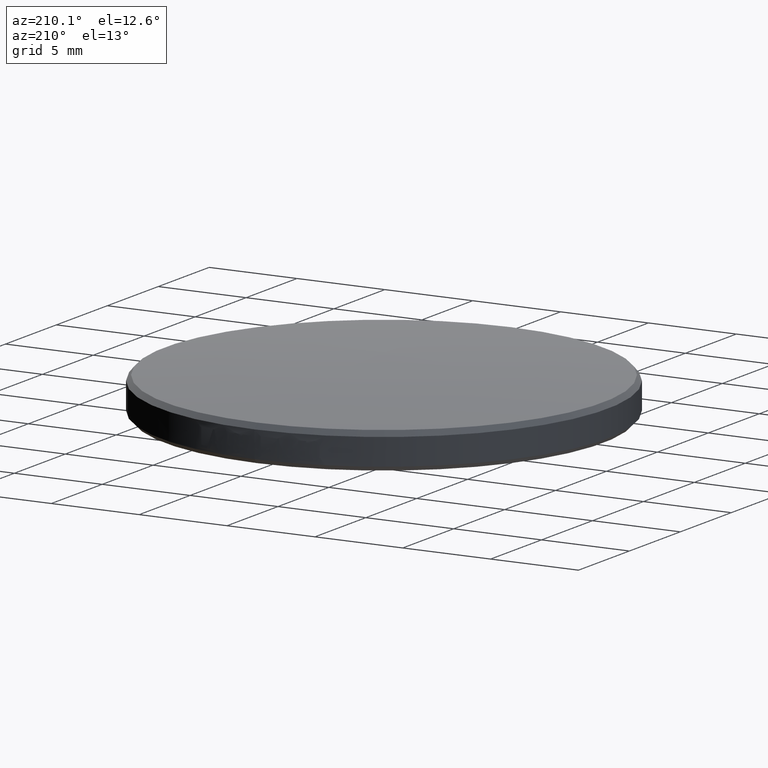
[diagram: clean part render]
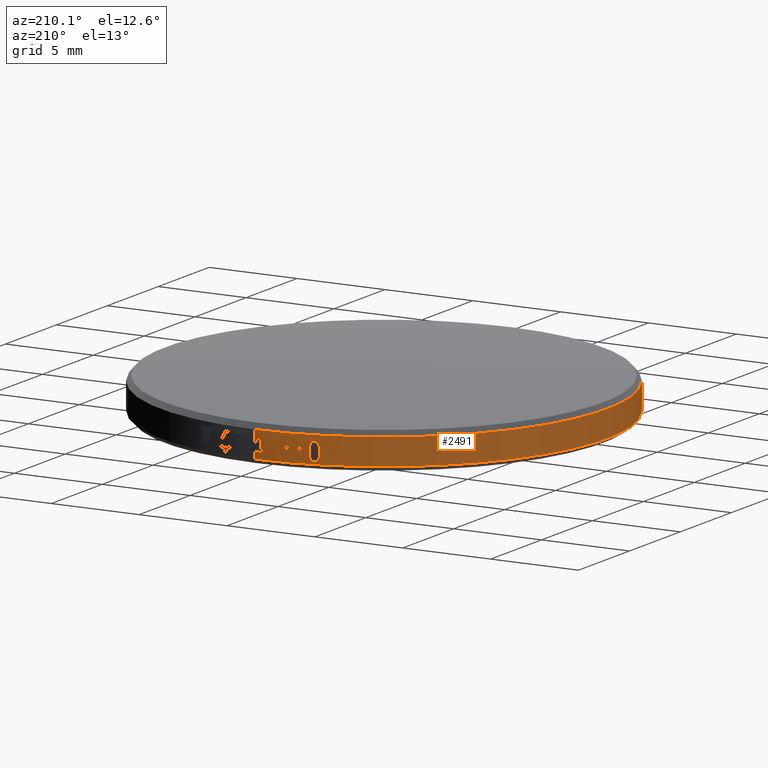
[diagram: same view with one face highlighted and labeled with its STEP entity id]
A machine part, auxiliary view. The second image highlights one B-rep face of the part: STEP entity #2491.
In plain terms, the highlighted cylindrical surface (partial cylindrical patch) has radius 12.7 mm, axis along (-0, 0, -1).
Its self-contained STEP definition (entity closure, byte-faithful):
#1 = B_SPLINE_CURVE_WITH_KNOTS ( 'NONE', 3,
 ( #2625, #2692, #2010, #2431 ),
 .UNSPECIFIED., .F., .F.,
 ( 4, 4 ),
 ( 0.0000000000000000000, 1.000000000000000000 ),
 .UNSPECIFIED. ) ;
#8 = CARTESIAN_POINT ( 'NONE',  ( -0.08398701613384568221, 1.349191503407815906, 0.7537460031436900021 ) ) ;
#12 = CARTESIAN_POINT ( 'NONE',  ( -0.09728420645018026613, 1.347196975954975118, 0.7653518456856538421 ) ) ;
#17 = CARTESIAN_POINT ( 'NONE',  ( -0.1310534688892926181, 1.340465810704113192, 0.7782163021207993969 ) ) ;
#18 = CARTESIAN_POINT ( 'NONE',  ( -0.1071166568760133914, 1.345487107112530056, 0.7779146070887471565 ) ) ;
#20 = B_SPLINE_CURVE_WITH_KNOTS ( 'NONE', 3,
 ( #2160, #1760, #671, #899, #51, #261 ),
 .UNSPECIFIED., .F., .F.,
 ( 4, 2, 4 ),
 ( 0.0000000000000000000, 0.5000000000000000000, 1.000000000000000000 ),
 .UNSPECIFIED. ) ;
#21 = CARTESIAN_POINT ( 'NONE',  ( -0.03040341698153942868, 1.353574847088909072, 0.7665172934987456443 ) ) ;
#23 = ORIENTED_EDGE ( 'NONE', *, *, #2647, .T. ) ;
#26 = CARTESIAN_POINT ( 'NONE',  ( -0.1351186129563085592, 1.339491088738657742, 0.7900910521010937604 ) ) ;
#30 = VERTEX_POINT ( 'NONE', #1477 ) ;
#33 = CARTESIAN_POINT ( 'NONE',  ( -0.01648550022812547006, 0.3537685930331552764, 0.7360616388966217949 ) ) ;
#34 = DIRECTION ( 'NONE',  ( 0.0000000000000000000, 1.000000000000000000, 0.0000000000000000000 ) ) ;
#42 = CARTESIAN_POINT ( 'NONE',  ( -0.1308213257067731006, 1.340520402825970514, 0.7750342840298531932 ) ) ;
#43 = VERTEX_POINT ( 'NONE', #2765 ) ;
#44 = EDGE_CURVE ( 'NONE', #1506, #948, #2382, .T. ) ;
#48 = CARTESIAN_POINT ( 'NONE',  ( -0.1429434407175738386, 1.337512764472900129, 0.7514428807530373344 ) ) ;
#51 = CARTESIAN_POINT ( 'NONE',  ( -0.05864938214554248769, 1.351989902064820059, 0.7782633814615771417 ) ) ;
#54 = CARTESIAN_POINT ( 'NONE',  ( -0.1440328660500991842, 1.337226693720342308, 0.7517412122617885828 ) ) ;
#55 = VECTOR ( 'NONE', #1028, 39.37007874015748143 ) ;
#56 = EDGE_CURVE ( 'NONE', #226, #2699, #1721, .T. ) ;
#58 = VERTEX_POINT ( 'NONE', #21 ) ;
#60 = EDGE_CURVE ( 'NONE', #2136, #323, #1168, .T. ) ;
#62 = CARTESIAN_POINT ( 'NONE',  ( -0.1096980513885174729, 1.345003180889274397, 0.7633656599760183514 ) ) ;
#64 = VERTEX_POINT ( 'NONE', #1555 ) ;
#71 = CARTESIAN_POINT ( 'NONE',  ( -0.09002142434446858132, 1.348331702314616187, 0.7512976543968221677 ) ) ;
#73 = CARTESIAN_POINT ( 'NONE',  ( -0.09987492225958270742, 1.346765757622627735, 0.7917303616805637656 ) ) ;
#75 = CARTESIAN_POINT ( 'NONE',  ( -0.05837053795509802162, 1.352012655074838809, 0.7830135390965108355 ) ) ;
#80 = EDGE_CURVE ( 'NONE', #2699, #558, #2582, .T. ) ;
#82 = CARTESIAN_POINT ( 'NONE',  ( -0.1457018734373652924, 1.336783317527112880, 0.7914882180647755394 ) ) ;
#87 = CARTESIAN_POINT ( 'NONE',  ( -0.09442205916122899112, 1.347657939327520538, 0.7731042729554272741 ) ) ;
#91 = CARTESIAN_POINT ( 'NONE',  ( -0.02312253400948144355, 1.353735554278563402, 0.7867369368858753154 ) ) ;
#92 = CARTESIAN_POINT ( 'NONE',  ( -0.1224395596741398445, 1.342413683678640890, 0.7765397023995047610 ) ) ;
#93 = ORIENTED_EDGE ( 'NONE', *, *, #651, .T. ) ;
#95 = DIRECTION ( 'NONE',  ( -0.1923080737880455415, 0.9813346038716518338, 0.0000000000000000000 ) ) ;
#96 = VERTEX_POINT ( 'NONE', #1950 ) ;
#99 = CARTESIAN_POINT ( 'NONE',  ( -0.09052997384655743496, 1.348255616044446548, 0.7743963773055638766 ) ) ;
#100 = EDGE_CURVE ( 'NONE', #125, #609, #20, .T. ) ;
#111 = CARTESIAN_POINT ( 'NONE',  ( -0.09260598790839190408, 1.347940356164634368, 0.7740571598079836191 ) ) ;
#117 = CARTESIAN_POINT ( 'NONE',  ( -0.1224158714711932466, 1.342418526793727640, 0.7676056028313894553 ) ) ;
#120 = CARTESIAN_POINT ( 'NONE',  ( -0.1412432638328243450, 1.337953991842695922, 0.7927809061881395669 ) ) ;
#122 = DIRECTION ( 'NONE',  ( -0.0000000000000000000, 1.224646799147353207E-16, -1.000000000000000000 ) ) ;
#124 = CARTESIAN_POINT ( 'NONE',  ( -0.09706098191909319495, 1.347233478375743809, 0.7680783728928102239 ) ) ;
#125 = VERTEX_POINT ( 'NONE', #2410 ) ;
#126 = CARTESIAN_POINT ( 'NONE',  ( -0.1225544316179287135, 1.342388467715279754, 0.7659858054806737426 ) ) ;
#131 = DIRECTION ( 'NONE',  ( -0.0000000000000000000, 1.224646799147353207E-16, -1.000000000000000000 ) ) ;
#133 = CARTESIAN_POINT ( 'NONE',  ( -0.08676437287161396783, 1.348805092918909265, 0.7836734513294945081 ) ) ;
#135 = CARTESIAN_POINT ( 'NONE',  ( -0.03040341698153942868, 1.353574847088909072, 0.7927809061881395669 ) ) ;
#138 = CARTESIAN_POINT ( 'NONE',  ( -0.09048617089093498322, 1.348262293440337434, 0.7785401747170923592 ) ) ;
#143 = CARTESIAN_POINT ( 'NONE',  ( -0.1412432638328243450, 1.337953991842695922, 0.7927809061881395669 ) ) ;
#144 = CARTESIAN_POINT ( 'NONE',  ( -0.1013913153693643959, 1.346506863957960487, 0.7643468646379311116 ) ) ;
#149 = EDGE_CURVE ( 'NONE', #513, #2187, #239, .T. ) ;
#151 = CARTESIAN_POINT ( 'NONE',  ( -0.1186719239529320652, 1.343215194661556255, 0.7516770277314845927 ) ) ;
#152 = CARTESIAN_POINT ( 'NONE',  ( -0.1307636736205657346, 1.340533935971708335, 0.7720162374055874466 ) ) ;
#153 = CARTESIAN_POINT ( 'NONE',  ( -0.09655945066044951952, 1.347315469330544691, 0.7533614241341037854 ) ) ;
#157 = DIRECTION ( 'NONE',  ( -0.1853928720407864439, 0.9826644813955923707, 0.0000000000000000000 ) ) ;
#163 = CARTESIAN_POINT ( 'NONE',  ( -0.08065388711822046863, 1.349633915599598666, 0.7710067297928389074 ) ) ;
#167 = VERTEX_POINT ( 'NONE', #2651 ) ;
#171 = CARTESIAN_POINT ( 'NONE',  ( -0.08632095378760328008, 1.348867904254334338, 0.7773027601102514561 ) ) ;
#180 = VERTEX_POINT ( 'NONE', #682 ) ;
#181 = B_SPLINE_CURVE_WITH_KNOTS ( 'NONE', 3,
 ( #2505, #2059, #2077, #1652, #124, #2050, #999, #774, #2278, #2517, #1205, #87, #2725, #2474, #111, #1621, #1641, #768, #99 ),
 .UNSPECIFIED., .F., .F.,
 ( 4, 1, 2, 2, 2, 2, 2, 2, 2, 4 ),
 ( 0.0000000000000000000, 0.1250000000000167644, 0.1875000000000254796, 0.2500000000000341949, 0.3750000000000228706, 0.5000000000000115463, 0.7500000000000087708, 0.8125000000000096589, 0.8750000000000106581, 1.000000000000000000 ),
 .UNSPECIFIED. ) ;
#184 = CARTESIAN_POINT ( 'NONE',  ( -0.09828631969054182904, 1.347032102819893939, 0.7552076144354521459 ) ) ;
#188 = CARTESIAN_POINT ( 'NONE',  ( -0.1170251617302086877, 1.343556073952223207, 0.7785985553358668598 ) ) ;
#189 = DIRECTION ( 'NONE',  ( -0.1345853260024991727, 0.9909020082857845635, 0.0000000000000000000 ) ) ;
#191 = AXIS2_PLACEMENT_3D ( 'NONE', #2269, #2251, #1215 ) ;
#197 = CARTESIAN_POINT ( 'NONE',  ( -0.08291083592633941013, 1.349338605050362405, 0.7631905692247556994 ) ) ;
#199 = CARTESIAN_POINT ( 'NONE',  ( -0.1083218812599749253, 1.345264311379030797, 0.7631905692247556994 ) ) ;
#200 = B_SPLINE_CURVE_WITH_KNOTS ( 'NONE', 3,
 ( #1396, #2247, #1649, #340, #296, #529, #1159, #550, #2266, #956, #327, #2490 ),
 .UNSPECIFIED., .F., .F.,
 ( 4, 2, 2, 2, 2, 4 ),
 ( 0.0000000000000000000, 0.2500000000000000000, 0.5000000000000000000, 0.6250000000000028866, 0.7500000000000057732, 1.000000000000000000 ),
 .UNSPECIFIED. ) ;
#202 = DIRECTION ( 'NONE',  ( 0.0000000000000000000, 0.0000000000000000000, -1.000000000000000000 ) ) ;
#204 = CARTESIAN_POINT ( 'NONE',  ( -0.1514004885473311246, 1.335222586292469149, 0.7775551705706683636 ) ) ;
#217 = CARTESIAN_POINT ( 'NONE',  ( -0.1073651609474587793, 1.345440314296604489, 0.7562505696102993502 ) ) ;
#218 = CARTESIAN_POINT ( 'NONE',  ( -0.01648550022812553251, 0.8537685930331552209, 0.8049592766918979292 ) ) ;
#222 = CARTESIAN_POINT ( 'NONE',  ( -0.1149986714268388388, 1.343967757323682344, 0.7784304821588489132 ) ) ;
#223 = LINE ( 'NONE', #566, #2284 ) ;
#225 = CIRCLE ( 'NONE', #2242, 0.4999999999999997224 ) ;
#226 = VERTEX_POINT ( 'NONE', #1582 ) ;
#229 = CARTESIAN_POINT ( 'NONE',  ( -0.1505663904913215612, 1.335455583826725467, 0.7830725272256048308 ) ) ;
#236 = CARTESIAN_POINT ( 'NONE',  ( -0.08569040074765352233, 1.348956520432932127, 0.7524873149800495042 ) ) ;
#238 = ORIENTED_EDGE ( 'NONE', *, *, #418, .T. ) ;
#239 = B_SPLINE_CURVE_WITH_KNOTS ( 'NONE', 3,
 ( #1791, #286, #716, #2418, #483, #936, #1339, #1133, #2212, #1974, #691, #1990, #928, #1125, #2434, #2206, #920, #2426 ),
 .UNSPECIFIED., .F., .F.,
 ( 4, 2, 2, 2, 2, 1, 1, 2, 2, 4 ),
 ( 0.0000000000000000000, 0.2500000000000013878, 0.3749999999999952816, 0.4374999999999906186, 0.4999999999999859002, 0.6249999999999735767, 0.6874999999999694689, 0.7187499999999773515, 0.7499999999999851230, 1.000000000000000000 ),
 .UNSPECIFIED. ) ;
#242 = ORIENTED_EDGE ( 'NONE', *, *, #2788, .T. ) ;
#245 = DIRECTION ( 'NONE',  ( -0.0000000000000000000, 1.224646799147353207E-16, -1.000000000000000000 ) ) ;
#252 = VERTEX_POINT ( 'NONE', #1143 ) ;
#253 = CARTESIAN_POINT ( 'NONE',  ( -0.09691669725737475649, 1.347257017353848729, 0.7617941548276372377 ) ) ;
#261 = CARTESIAN_POINT ( 'NONE',  ( -0.05714914020873978345, 1.352112318170260563, 0.7775480108282911695 ) ) ;
#264 = VERTEX_POINT ( 'NONE', #2715 ) ;
#266 = CARTESIAN_POINT ( 'NONE',  ( -0.1516075516280545876, 1.335164512550915283, 0.7707568322857923926 ) ) ;
#267 = EDGE_CURVE ( 'NONE', #826, #2235, #200, .T. ) ;
#268 = CARTESIAN_POINT ( 'NONE',  ( -0.03512834291695843270, 1.353420916570712063, 0.7665172934987456443 ) ) ;
#269 = ORIENTED_EDGE ( 'NONE', *, *, #2314, .T. ) ;
#273 = CARTESIAN_POINT ( 'NONE',  ( -0.1213454507849369424, 1.342649420652041403, 0.7593495278122927017 ) ) ;
#274 = VERTEX_POINT ( 'NONE', #757 ) ;
#278 = EDGE_LOOP ( 'NONE', ( #2550, #2540, #1084, #1451, #2507, #1926, #1699, #415, #2428, #2745, #623, #23, #479, #2319, #1708 ) ) ;
#283 = CARTESIAN_POINT ( 'NONE',  ( -0.1496517107534321156, 1.335709376306423835, 0.7579495397684027358 ) ) ;
#286 = CARTESIAN_POINT ( 'NONE',  ( -0.09340793281691579797, 1.347819154486132653, 0.7785373078255363177 ) ) ;
#296 = CARTESIAN_POINT ( 'NONE',  ( -0.1129652881569940120, 1.344372189466681577, 0.7735983662179584108 ) ) ;
#300 = CARTESIAN_POINT ( 'NONE',  ( -0.1515599665748425251, 1.335177872095432816, 0.7690001398197807703 ) ) ;
#303 = VERTEX_POINT ( 'NONE', #2231 ) ;
#308 = CARTESIAN_POINT ( 'NONE',  ( -0.1108490998649008658, 1.344783393659779724, 0.7589847848502501160 ) ) ;
#310 = AXIS2_PLACEMENT_3D ( 'NONE', #1151, #2241, #95 ) ;
#315 = VERTEX_POINT ( 'NONE', #1624 ) ;
#316 = CARTESIAN_POINT ( 'NONE',  ( -0.1465554298843906034, 1.336554087488986520, 0.7908102877418069498 ) ) ;
#318 = CARTESIAN_POINT ( 'NONE',  ( -0.1232251571068268409, 1.342242458742134215, 0.7757589565456047831 ) ) ;
#320 = CARTESIAN_POINT ( 'NONE',  ( -0.06643896069281526873, 1.351267294554007847, 0.7915150759436635486 ) ) ;
#321 = VERTEX_POINT ( 'NONE', #746 ) ;
#323 = VERTEX_POINT ( 'NONE', #946 ) ;
#324 = CARTESIAN_POINT ( 'NONE',  ( -0.1326442962748846377, 1.340088595707557895, 0.7580579449241429124 ) ) ;
#327 = CARTESIAN_POINT ( 'NONE',  ( -0.1105558556451589347, 1.344839758250706119, 0.7710742994759739455 ) ) ;
#329 = VECTOR ( 'NONE', #2030, 39.37007874015748143 ) ;
#338 = CARTESIAN_POINT ( 'NONE',  ( -0.1242255468456508749, 1.342022750645569085, 0.7745289914403932219 ) ) ;
#340 = CARTESIAN_POINT ( 'NONE',  ( -0.1135306481029750153, 1.344260760646952768, 0.7739041752609555624 ) ) ;
#343 = CARTESIAN_POINT ( 'NONE',  ( -0.1251311132631452994, 1.341822002782789625, 0.7870029113964728262 ) ) ;
#344 = EDGE_CURVE ( 'NONE', #321, #1358, #1090, .T. ) ;
#345 = CARTESIAN_POINT ( 'NONE',  ( -0.1197313794731155595, 1.342993574018731318, 0.7731042729554378212 ) ) ;
#349 = CARTESIAN_POINT ( 'NONE',  ( -0.1257962997535416738, 1.341673476884659433, 0.7714440291707478359 ) ) ;
#354 = CARTESIAN_POINT ( 'NONE',  ( -0.08481900059160620009, 1.349077115802624904, 0.7704075911283619904 ) ) ;
#356 = CARTESIAN_POINT ( 'NONE',  ( -0.1088381686150849403, 1.345167561973021453, 0.7706073040165208887 ) ) ;
#368 = DIRECTION ( 'NONE',  ( -0.09806803497695808225, 0.9951797126729212684, 0.0000000000000000000 ) ) ;
#369 = CARTESIAN_POINT ( 'NONE',  ( -0.1157706335737800907, 1.343811919991634962, 0.7554865761692002302 ) ) ;
#379 = CARTESIAN_POINT ( 'NONE',  ( -0.01648550022812553251, 0.8537685930331552209, 0.7617898432146547050 ) ) ;
#380 = LINE ( 'NONE', #1304, #612 ) ;
#385 = CARTESIAN_POINT ( 'NONE',  ( -0.1492764888809314794, 1.335812752028415984, 0.7869343756477038543 ) ) ;
#389 = B_SPLINE_CURVE_WITH_KNOTS ( 'NONE', 3,
 ( #354, #2758, #1696, #163 ),
 .UNSPECIFIED., .F., .F.,
 ( 4, 4 ),
 ( 0.0000000000000000000, 1.000000000000000000 ),
 .UNSPECIFIED. ) ;
#391 = CARTESIAN_POINT ( 'NONE',  ( -0.1102140636550754532, 1.344904985899658456, 0.7704075911283619904 ) ) ;
#395 = CARTESIAN_POINT ( 'NONE',  ( -0.09963045957739120884, 1.346807086553369226, 0.7574281911025896319 ) ) ;
#398 = VERTEX_POINT ( 'NONE', #520 ) ;
#399 = EDGE_CURVE ( 'NONE', #323, #1506, #2193, .T. ) ;
#400 = CARTESIAN_POINT ( 'NONE',  ( -0.1248891009402894325, 1.341875855538549933, 0.7574281911019264957 ) ) ;
#401 = CARTESIAN_POINT ( 'NONE',  ( -0.08444438486708057134, 1.349128675846034575, 0.7622622386819115636 ) ) ;
#402 = CARTESIAN_POINT ( 'NONE',  ( -0.09228737111785312308, 1.347989712016153474, 0.7514084569867687247 ) ) ;
#405 = CARTESIAN_POINT ( 'NONE',  ( -0.1142430635395519228, 1.344119005350896234, 0.7782710453948304963 ) ) ;
#412 = CARTESIAN_POINT ( 'NONE',  ( -0.1176165901206208536, 1.343434745361805849, 0.7514084569867685026 ) ) ;
#415 = ORIENTED_EDGE ( 'NONE', *, *, #2535, .T. ) ;
#416 = CARTESIAN_POINT ( 'NONE',  ( -0.1010301672083040586, 1.346569006906632282, 0.7614125665220797812 ) ) ;
#418 = EDGE_CURVE ( 'NONE', #1252, #2724, #481, .T. ) ;
#419 = VERTEX_POINT ( 'NONE', #779 ) ;
#420 = CARTESIAN_POINT ( 'NONE',  ( -0.1265912962542512232, 1.341494657465953866, 0.7637560822634292812 ) ) ;
#422 = CARTESIAN_POINT ( 'NONE',  ( -0.08570270751297559553, 1.348954461702283725, 0.7585184094238129893 ) ) ;
#428 = CARTESIAN_POINT ( 'NONE',  ( -0.09987492225958270742, 1.346765757622627735, 0.7917303616805637656 ) ) ;
#429 = CARTESIAN_POINT ( 'NONE',  ( -0.1163424101274745243, 1.343696223747191665, 0.7785731437382347186 ) ) ;
#431 = EDGE_CURVE ( 'NONE', #2023, #2522, #883, .T. ) ;
#435 = ORIENTED_EDGE ( 'NONE', *, *, #2439, .T. ) ;
#438 = VECTOR ( 'NONE', #2563, 39.37007874015748143 ) ;
#439 = DIRECTION ( 'NONE',  ( -0.01990978576370583050, 0.9998017805699503935, 0.0000000000000000000 ) ) ;
#442 = ORIENTED_EDGE ( 'NONE', *, *, #431, .F. ) ;
#443 = CARTESIAN_POINT ( 'NONE',  ( -0.1139792893680514341, 1.344171473800151340, 0.7514429603835727223 ) ) ;
#444 = CARTESIAN_POINT ( 'NONE',  ( -0.08646775860410611803, 1.348847120913580833, 0.7573615382324599965 ) ) ;
#445 = CARTESIAN_POINT ( 'NONE',  ( -0.1514710029189872409, 1.335202819342647063, 0.7766414248924734531 ) ) ;
#456 = VECTOR ( 'NONE', #202, 39.37007874015748143 ) ;
#457 = CARTESIAN_POINT ( 'NONE',  ( -0.03040341698153942868, 1.353574847088909072, 0.7617898432146547050 ) ) ;
#460 = CARTESIAN_POINT ( 'NONE',  ( -0.1322608062934881590, 1.340180032533284882, 0.7845929813552192655 ) ) ;
#464 = CARTESIAN_POINT ( 'NONE',  ( -0.1153712416439563876, 1.343892874560230322, 0.7512976543968222787 ) ) ;
#466 = DIRECTION ( 'NONE',  ( 0.0000000000000000000, 0.0000000000000000000, -1.000000000000000000 ) ) ;
#469 = CIRCLE ( 'NONE', #310, 0.4999999999999998890 ) ;
#475 = VERTEX_POINT ( 'NONE', #1020 ) ;
#478 = CIRCLE ( 'NONE', #892, 0.4999999999999997224 ) ;
#479 = ORIENTED_EDGE ( 'NONE', *, *, #2329, .T. ) ;
#481 = CIRCLE ( 'NONE', #2632, 0.5000000000000000000 ) ;
#482 = VERTEX_POINT ( 'NONE', #2532 ) ;
#483 = CARTESIAN_POINT ( 'NONE',  ( -0.09715648966942518061, 1.347218163696243698, 0.7765397023992044456 ) ) ;
#487 = CARTESIAN_POINT ( 'NONE',  ( -0.1511648422758215260, 1.335288575120213261, 0.7643089211736171507 ) ) ;
#496 = CARTESIAN_POINT ( 'NONE',  ( -0.1505071972518278456, 1.335472044020187266, 0.7608149032957091107 ) ) ;
#499 = LINE ( 'NONE', #73, #2147 ) ;
#504 = CARTESIAN_POINT ( 'NONE',  ( -0.1513859455260506137, 1.335226660121360043, 0.7664530127824257244 ) ) ;
#513 = VERTEX_POINT ( 'NONE', #2524 ) ;
#520 = CARTESIAN_POINT ( 'NONE',  ( -0.1411955765111360672, 1.337966276705315538, 0.7512843981388971359 ) ) ;
#529 = CARTESIAN_POINT ( 'NONE',  ( -0.1122466534568167529, 1.344512784145376560, 0.7730730338658680090 ) ) ;
#532 = CARTESIAN_POINT ( 'NONE',  ( -0.1400343748197027394, 1.338263947215807548, 0.7513634017248387309 ) ) ;
#534 = CARTESIAN_POINT ( 'NONE',  ( -0.1158752025660981511, 1.343790722195879139, 0.7743963773055638766 ) ) ;
#535 = CARTESIAN_POINT ( 'NONE',  ( -0.1259708422015500262, 1.341634315427021606, 0.7708743299479229316 ) ) ;
#540 = CARTESIAN_POINT ( 'NONE',  ( -0.1324411905012165269, 1.340137063221709557, 0.7585977671119567001 ) ) ;
#541 = EDGE_CURVE ( 'NONE', #2136, #948, #478, .T. ) ;
#542 = CARTESIAN_POINT ( 'NONE',  ( -0.1176087444801419135, 1.343435956680007148, 0.7741597074001229650 ) ) ;
#549 = VECTOR ( 'NONE', #1403, 39.37007874015748143 ) ;
#550 = CARTESIAN_POINT ( 'NONE',  ( -0.1115806612933348679, 1.344642263011745609, 0.7724547762458220390 ) ) ;
#552 = AXIS2_PLACEMENT_3D ( 'NONE', #2527, #2515, #1226 ) ;
#555 = ORIENTED_EDGE ( 'NONE', *, *, #1206, .T. ) ;
#558 = VERTEX_POINT ( 'NONE', #1280 ) ;
#560 = CARTESIAN_POINT ( 'NONE',  ( -0.01648550022812547006, 0.3537685930331552764, 0.7459041585816611475 ) ) ;
#562 = EDGE_CURVE ( 'NONE', #995, #1139, #2228, .T. ) ;
#564 = CARTESIAN_POINT ( 'NONE',  ( -0.1170251617302086877, 1.343556073952223207, 0.7785985553358668598 ) ) ;
#566 = CARTESIAN_POINT ( 'NONE',  ( -0.01648550022812553251, 1.353768593033155110, 0.7360616388966217949 ) ) ;
#584 = CARTESIAN_POINT ( 'NONE',  ( -0.08576199900760123063, 1.348946103343202862, 0.7770145311955377609 ) ) ;
#585 = CARTESIAN_POINT ( 'NONE',  ( -0.08593925646342949476, 1.348921295673980447, 0.7721633945202379667 ) ) ;
#586 = VERTEX_POINT ( 'NONE', #1073 ) ;
#587 = AXIS2_PLACEMENT_3D ( 'NONE', #379, #595, #1247 ) ;
#589 = CARTESIAN_POINT ( 'NONE',  ( -0.09773819357557518572, 1.347122782702741661, 0.7545268360324298706 ) ) ;
#594 = EDGE_CURVE ( 'NONE', #586, #2719, #1082, .T. ) ;
#595 = DIRECTION ( 'NONE',  ( -0.0000000000000000000, 1.224646799147353207E-16, -1.000000000000000000 ) ) ;
#599 = FACE_BOUND ( 'NONE', #2057, .T. ) ;
#608 = CARTESIAN_POINT ( 'NONE',  ( -0.09335260377196401282, 1.347824753233630046, 0.7516770277314500648 ) ) ;
#609 = VERTEX_POINT ( 'NONE', #2328 ) ;
#611 = ORIENTED_EDGE ( 'NONE', *, *, #80, .T. ) ;
#612 = VECTOR ( 'NONE', #1729, 39.37007874015748143 ) ;
#616 = EDGE_CURVE ( 'NONE', #558, #167, #681, .T. ) ;
#619 = VERTEX_POINT ( 'NONE', #2146 ) ;
#620 = CARTESIAN_POINT ( 'NONE',  ( -0.1124736034571891113, 1.344468785177699743, 0.7776672434938625145 ) ) ;
#623 = ORIENTED_EDGE ( 'NONE', *, *, #1310, .T. ) ;
#629 = CARTESIAN_POINT ( 'NONE',  ( -0.1135851462810322926, 1.344249690849889545, 0.7780824458340209748 ) ) ;
#643 = ORIENTED_EDGE ( 'NONE', *, *, #2408, .T. ) ;
#646 = CARTESIAN_POINT ( 'NONE',  ( -0.1514873473616146771, 1.335198236224297563, 0.7763996791587481905 ) ) ;
#650 = CARTESIAN_POINT ( 'NONE',  ( -0.08147451072332770328, 1.349527051992660098, 0.7572264360952032369 ) ) ;
#651 = EDGE_CURVE ( 'NONE', #1683, #919, #898, .T. ) ;
#657 = CARTESIAN_POINT ( 'NONE',  ( -0.1509926619238853296, 1.335336684082936154, 0.7808338382621476947 ) ) ;
#662 = B_SPLINE_CURVE_WITH_KNOTS ( 'NONE', 3,
 ( #2017, #75, #977, #758, #937, #1160, #1800, #1809, #320, #2660 ),
 .UNSPECIFIED., .F., .F.,
 ( 4, 2, 2, 2, 4 ),
 ( 0.0000000000000000000, 0.2500000000000000000, 0.5000000000000000000, 0.7500000000000000000, 1.000000000000000000 ),
 .UNSPECIFIED. ) ;
#664 = CARTESIAN_POINT ( 'NONE',  ( -0.08939168691964696767, 1.348425826269482597, 0.7555240175261631608 ) ) ;
#667 = CARTESIAN_POINT ( 'NONE',  ( -0.1400309934584852145, 1.338264876715937080, 0.7927125515634922959 ) ) ;
#670 = EDGE_CURVE ( 'NONE', #619, #890, #1733, .T. ) ;
#671 = CARTESIAN_POINT ( 'NONE',  ( -0.06313010295040781539, 1.351590374490864388, 0.7814144929917234972 ) ) ;
#677 = CARTESIAN_POINT ( 'NONE',  ( -0.1405551449400272435, 1.338131296185972152, 0.7927559253685615426 ) ) ;
#681 = B_SPLINE_CURVE_WITH_KNOTS ( 'NONE', 3,
 ( #1260, #1517, #199, #1050 ),
 .UNSPECIFIED., .F., .F.,
 ( 4, 4 ),
 ( 0.0000000000000000000, 1.000000000000000000 ),
 .UNSPECIFIED. ) ;
#682 = CARTESIAN_POINT ( 'NONE',  ( -0.03040341698153942868, 1.353574847088909072, 0.7617898432146547050 ) ) ;
#683 = CARTESIAN_POINT ( 'NONE',  ( -0.1221156944007732170, 1.342483508693930183, 0.7614378266447662247 ) ) ;
#686 = CARTESIAN_POINT ( 'NONE',  ( -0.09263144948889055763, 1.347937210146152642, 0.7558312007804728339 ) ) ;
#689 = EDGE_CURVE ( 'NONE', #30, #2522, #1736, .T. ) ;
#691 = CARTESIAN_POINT ( 'NONE',  ( -0.1000709710140121056, 1.346732706109627475, 0.7727015248143330739 ) ) ;
#693 = AXIS2_PLACEMENT_3D ( 'NONE', #2744, #122, #1463 ) ;
#699 = CARTESIAN_POINT ( 'NONE',  ( -0.1222020840732961633, 1.342464824136062385, 0.7617941548276370156 ) ) ;
#703 = CARTESIAN_POINT ( 'NONE',  ( -0.1314744400998515139, 1.340366608959489225, 0.7814507326062439807 ) ) ;
#711 = CARTESIAN_POINT ( 'NONE',  ( -0.02620242518006272656, 1.353674165486071779, 0.7518096703926850921 ) ) ;
#713 = CARTESIAN_POINT ( 'NONE',  ( -0.1091819362485187406, 1.345100833730951351, 0.7917303616805637656 ) ) ;
#714 = B_SPLINE_CURVE_WITH_KNOTS ( 'NONE', 3,
 ( #814, #2133, #1469, #2780, #385, #1714, #1490, #1895, #2324, #1267, #229, #1512, #854, #657, #1753, #2403, #204, #1078, #445, #646, #1960, #1932, #1520 ),
 .UNSPECIFIED., .F., .F.,
 ( 4, 2, 2, 2, 2, 1, 2, 2, 1, 1, 2, 2, 4 ),
 ( 0.0000000000000000000, 0.06249999999999343581, 0.1249999999999868716, 0.1874999999999802935, 0.2499999999999737432, 0.3749999999999553135, 0.4374999999999589217, 0.4999999999999625855, 0.6249999999999970024, 0.6875000000000268674, 0.7187500000000306422, 0.7500000000000344169, 1.000000000000000000 ),
 .UNSPECIFIED. ) ;
#716 = CARTESIAN_POINT ( 'NONE',  ( -0.09459870097097645980, 1.347631056684733375, 0.7782168419795143510 ) ) ;
#720 = CARTESIAN_POINT ( 'NONE',  ( -0.1475521437642421940, 1.336284528754077217, 0.7542686725404377235 ) ) ;
#728 = CARTESIAN_POINT ( 'NONE',  ( -0.05138769838582418759, 1.352548942048391156, 0.7686183825138971359 ) ) ;
#732 = CARTESIAN_POINT ( 'NONE',  ( -0.01648550022812553251, 1.353768593033155110, 0.7746489982813469233 ) ) ;
#733 = B_SPLINE_CURVE_WITH_KNOTS ( 'NONE', 3,
 ( #1848, #126, #2301, #117, #2508, #1218, #1858, #2529, #1207, #1444, #769, #345, #2495, #776, #2740, #542, #2271, #1863, #2263 ),
 .UNSPECIFIED., .F., .F.,
 ( 4, 1, 2, 2, 2, 2, 2, 2, 2, 4 ),
 ( 0.0000000000000000000, 0.1250000000000048017, 0.1874999999999909239, 0.2499999999999770739, 0.3749999999999753530, 0.4999999999999736877, 0.7499999999999702460, 0.8124999999999776845, 0.8749999999999851230, 1.000000000000000000 ),
 .UNSPECIFIED. ) ;
#734 = DIRECTION ( 'NONE',  ( 0.0000000000000000000, 1.000000000000000000, 0.0000000000000000000 ) ) ;
#742 = CARTESIAN_POINT ( 'NONE',  ( -0.1416687582248604693, 1.337844356713451699, 0.7927681900061519515 ) ) ;
#746 = CARTESIAN_POINT ( 'NONE',  ( -0.01648550022812553251, 1.353768593033155110, 0.7459041585816611475 ) ) ;
#747 = CARTESIAN_POINT ( 'NONE',  ( -0.1118488035248515755, 1.344590460557400613, 0.7573615382324661027 ) ) ;
#751 = CARTESIAN_POINT ( 'NONE',  ( -0.1385940618908904354, 1.338629126141381187, 0.7516870456283719637 ) ) ;
#755 = CARTESIAN_POINT ( 'NONE',  ( -0.1469995573703703207, 1.336434203539601517, 0.7903825471675437475 ) ) ;
#757 = CARTESIAN_POINT ( 'NONE',  ( -0.1170251617302086877, 1.343556073952223207, 0.7785985553358668598 ) ) ;
#758 = CARTESIAN_POINT ( 'NONE',  ( -0.06108119622574041674, 1.351776559848264725, 0.7850181988521900411 ) ) ;
#759 = ORIENTED_EDGE ( 'NONE', *, *, #60, .T. ) ;
#760 = CARTESIAN_POINT ( 'NONE',  ( -0.1323232922713432624, 1.340165150252000448, 0.7589433813793799999 ) ) ;
#765 = CARTESIAN_POINT ( 'NONE',  ( -0.1266298703671228654, 1.341485949003157208, 0.7674232425477872654 ) ) ;
#768 = CARTESIAN_POINT ( 'NONE',  ( -0.09118557778941990821, 1.348157445927553155, 0.7743711043773054969 ) ) ;
#769 = CARTESIAN_POINT ( 'NONE',  ( -0.1204756632200759126, 1.342835499846344982, 0.7723771894840614216 ) ) ;
#774 = CARTESIAN_POINT ( 'NONE',  ( -0.09669009983568840894, 1.347293933827796719, 0.7696052762739094000 ) ) ;
#776 = CARTESIAN_POINT ( 'NONE',  ( -0.1184123890153614411, 1.343269327928733325, 0.7738600608739752973 ) ) ;
#779 = CARTESIAN_POINT ( 'NONE',  ( -0.1516173168850051822, 1.335161771346902615, 0.7720162374055874466 ) ) ;
#780 = VERTEX_POINT ( 'NONE', #2499 ) ;
#787 = CARTESIAN_POINT ( 'NONE',  ( -0.08888310533866304597, 1.348499484345820898, 0.7782710453948703533 ) ) ;
#793 = AXIS2_PLACEMENT_3D ( 'NONE', #1637, #1187, #734 ) ;
#795 = CARTESIAN_POINT ( 'NONE',  ( -0.08964549463226484383, 1.348387315676712550, 0.7784304821589089762 ) ) ;
#802 = CARTESIAN_POINT ( 'NONE',  ( -0.1308873818251881926, 1.340504906289514020, 0.7671828246395864248 ) ) ;
#803 = CARTESIAN_POINT ( 'NONE',  ( -0.08377816322937507720, 1.349219597176047225, 0.7917303616805637656 ) ) ;
#814 = CARTESIAN_POINT ( 'NONE',  ( -0.1484378130063625234, 1.336042982932177603, 0.7885130691261130753 ) ) ;
#815 = CARTESIAN_POINT ( 'NONE',  ( -0.03880215474250977431, 1.353270311680133675, 0.7686183825138971359 ) ) ;
#823 = CARTESIAN_POINT ( 'NONE',  ( -0.1307636736205657346, 1.340533935971708335, 0.7720162374055874466 ) ) ;
#826 = VERTEX_POINT ( 'NONE', #534 ) ;
#827 = EDGE_CURVE ( 'NONE', #2719, #890, #2140, .T. ) ;
#828 = CARTESIAN_POINT ( 'NONE',  ( -0.1230155853085212747, 1.342288498066217528, 0.7545268360326561341 ) ) ;
#830 = CARTESIAN_POINT ( 'NONE',  ( -0.09597106639456294552, 1.347410738505130157, 0.7529010868970406056 ) ) ;
#839 = CARTESIAN_POINT ( 'NONE',  ( -0.1258443871278103754, 1.341662723439251748, 0.7597501601923315473 ) ) ;
#841 = ORIENTED_EDGE ( 'NONE', *, *, #1363, .T. ) ;
#844 = ORIENTED_EDGE ( 'NONE', *, *, #399, .T. ) ;
#849 = EDGE_CURVE ( 'NONE', #2372, #959, #1778, .T. ) ;
#851 = VECTOR ( 'NONE', #2062, 39.37007874015748143 ) ;
#854 = CARTESIAN_POINT ( 'NONE',  ( -0.1509197289902909911, 1.335357051324266742, 0.7812683595694350780 ) ) ;
#856 = CARTESIAN_POINT ( 'NONE',  ( -0.1117032625553324166, 1.344618770055576507, 0.7773027601100865880 ) ) ;
#858 = VERTEX_POINT ( 'NONE', #2035 ) ;
#859 = B_SPLINE_CURVE_WITH_KNOTS ( 'NONE', 3,
 ( #1266, #133, #2569, #1893 ),
 .UNSPECIFIED., .F., .F.,
 ( 4, 4 ),
 ( 0.0000000000000000000, 1.000000000000000000 ),
 .UNSPECIFIED. ) ;
#860 = CARTESIAN_POINT ( 'NONE',  ( -0.1059774238547376707, 1.345694756806491199, 0.7597995211069092925 ) ) ;
#861 = DIRECTION ( 'NONE',  ( -0.0000000000000000000, 1.224646799147368245E-16, -1.000000000000000000 ) ) ;
#868 = CARTESIAN_POINT ( 'NONE',  ( -0.08865545751153537657, 1.348533311913072907, 0.7557239572075933332 ) ) ;
#877 = CARTESIAN_POINT ( 'NONE',  ( -0.1123225021707021654, 1.344498325938207506, 0.7518802423060177986 ) ) ;
#883 = CIRCLE ( 'NONE', #1623, 0.4999999999999998890 ) ;
#890 = VERTEX_POINT ( 'NONE', #1674 ) ;
#892 = AXIS2_PLACEMENT_3D ( 'NONE', #2350, #2763, #1288 ) ;
#894 = VERTEX_POINT ( 'NONE', #1685 ) ;
#898 = B_SPLINE_CURVE_WITH_KNOTS ( 'NONE', 3,
 ( #2674, #71, #934, #1593, #1745, #1605, #2396, #1734, #236, #1947, #8, #1106, #1373, #1533, #650, #2619, #1553, #2385, #1327, #2610 ),
 .UNSPECIFIED., .F., .F.,
 ( 4, 1, 2, 2, 2, 2, 2, 1, 2, 2, 4 ),
 ( 0.0000000000000000000, 0.06250000000000718869, 0.09375000000001078304, 0.1250000000000143774, 0.2500000000000213163, 0.3750000000000282552, 0.5000000000000351941, 0.6250000000000420775, 0.6875000000000350830, 0.7500000000000280886, 1.000000000000000000 ),
 .UNSPECIFIED. ) ;
#899 = CARTESIAN_POINT ( 'NONE',  ( -0.06014564418777346155, 1.351860990973807741, 0.7791797520209204908 ) ) ;
#900 = CARTESIAN_POINT ( 'NONE',  ( -0.1179575112859042041, 1.343364608846279840, 0.7558312007804468546 ) ) ;
#901 = ORIENTED_EDGE ( 'NONE', *, *, #149, .T. ) ;
#905 = FACE_BOUND ( 'NONE', #1230, .T. ) ;
#911 = CIRCLE ( 'NONE', #191, 0.4999999999999998335 ) ;
#913 = CARTESIAN_POINT ( 'NONE',  ( -0.09639900913999517595, 1.347341176795696205, 0.7600771223274865873 ) ) ;
#915 = CARTESIAN_POINT ( 'NONE',  ( -0.1391555780833903244, 1.338487192247955981, 0.7925484407307873402 ) ) ;
#919 = VERTEX_POINT ( 'NONE', #1018 ) ;
#920 = CARTESIAN_POINT ( 'NONE',  ( -0.1013889853565051180, 1.346507265963077460, 0.7674232425477994779 ) ) ;
#924 = CARTESIAN_POINT ( 'NONE',  ( -0.1501774026948532736, 1.335563653318857957, 0.7596151594260323048 ) ) ;
#928 = CARTESIAN_POINT ( 'NONE',  ( -0.1007231961221765615, 1.346621526253998224, 0.7708743299475864230 ) ) ;
#930 = AXIS2_PLACEMENT_3D ( 'NONE', #2555, #1484, #189 ) ;
#934 = CARTESIAN_POINT ( 'NONE',  ( -0.08942323858282212601, 1.348420288239049913, 0.7513343171391736464 ) ) ;
#935 = DIRECTION ( 'NONE',  ( 0.0000000000000000000, 0.0000000000000000000, -1.000000000000000000 ) ) ;
#936 = CARTESIAN_POINT ( 'NONE',  ( -0.09794985667413445840, 1.347087587660459107, 0.7757589565452347458 ) ) ;
#937 = CARTESIAN_POINT ( 'NONE',  ( -0.06204431713458271463, 1.351689388378330747, 0.7858844427412529088 ) ) ;
#941 = CARTESIAN_POINT ( 'NONE',  ( -0.1418843866273245546, 1.337788866599834314, 0.7513092409446097131 ) ) ;
#942 = EDGE_CURVE ( 'NONE', #2724, #125, #2064, .T. ) ;
#946 = CARTESIAN_POINT ( 'NONE',  ( -0.05138769838582418759, 1.352548942048391156, 0.7638909322298061966 ) ) ;
#948 = VERTEX_POINT ( 'NONE', #815 ) ;
#954 = CARTESIAN_POINT ( 'NONE',  ( -0.1420610136513646427, 1.337742691615815493, 0.7927395657735685219 ) ) ;
#956 = CARTESIAN_POINT ( 'NONE',  ( -0.1108762594638966897, 1.344778243978757892, 0.7715965888673945727 ) ) ;
#958 = CARTESIAN_POINT ( 'NONE',  ( -0.08981399910713691592, 1.348362826082804666, 0.7743651859654906433 ) ) ;
#959 = VERTEX_POINT ( 'NONE', #2074 ) ;
#965 = CARTESIAN_POINT ( 'NONE',  ( -0.02644039310997844949, 1.353669483318130418, 0.7927809061881395669 ) ) ;
#967 = CARTESIAN_POINT ( 'NONE',  ( -0.1124602802578058558, 1.344471630909291004, 0.7567233830541043593 ) ) ;
#969 = ORIENTED_EDGE ( 'NONE', *, *, #541, .F. ) ;
#972 = CARTESIAN_POINT ( 'NONE',  ( -0.1358589203097212983, 1.339309656045181818, 0.7533089588055816854 ) ) ;
#976 = CARTESIAN_POINT ( 'NONE',  ( -0.1234775599648629540, 1.342187225994123656, 0.7754804060016760037 ) ) ;
#977 = CARTESIAN_POINT ( 'NONE',  ( -0.05940111650671419524, 1.351924152062922824, 0.7837097022412983227 ) ) ;
#979 = CARTESIAN_POINT ( 'NONE',  ( -0.1319814235337419261, 1.340246517235752055, 0.7600163402339650265 ) ) ;
#989 = CARTESIAN_POINT ( 'NONE',  ( -0.1371940080504220061, 1.338979535731251946, 0.7523355766542796363 ) ) ;
#991 = VERTEX_POINT ( 'NONE', #1294 ) ;
#992 = CARTESIAN_POINT ( 'NONE',  ( -0.01648550022812553251, 1.353768593033155110, 0.7746489982813469233 ) ) ;
#995 = VERTEX_POINT ( 'NONE', #428 ) ;
#996 = EDGE_CURVE ( 'NONE', #2023, #1289, #1017, .T. ) ;
#999 = CARTESIAN_POINT ( 'NONE',  ( -0.09685050834236189066, 1.347267814135758135, 0.7690777898826661740 ) ) ;
#1004 = CARTESIAN_POINT ( 'NONE',  ( -0.1218770237464982531, 1.342535488448598269, 0.7769916616727797765 ) ) ;
#1006 = CARTESIAN_POINT ( 'NONE',  ( -0.1363198411458944326, 1.339196171062529750, 0.7529259468898237273 ) ) ;
#1013 = DIRECTION ( 'NONE',  ( -0.0000000000000000000, 1.224646799147353207E-16, -1.000000000000000000 ) ) ;
#1017 = LINE ( 'NONE', #2347, #438 ) ;
#1018 = CARTESIAN_POINT ( 'NONE',  ( -0.08013292321340448332, 1.349701053704296383, 0.7628403877222303953 ) ) ;
#1019 = CARTESIAN_POINT ( 'NONE',  ( -0.02620242518006272656, 1.353674165486071779, 0.7518096703926850921 ) ) ;
#1020 = CARTESIAN_POINT ( 'NONE',  ( -0.02620242518006284799, 1.353674165486072001, 0.7617898432146547050 ) ) ;
#1025 = CARTESIAN_POINT ( 'NONE',  ( -0.1243112006625842619, 1.342003868657297261, 0.7563758907206986626 ) ) ;
#1028 = DIRECTION ( 'NONE',  ( 0.0000000000000000000, 0.0000000000000000000, 1.000000000000000000 ) ) ;
#1036 = CARTESIAN_POINT ( 'NONE',  ( -0.08273717656702460344, 1.349360985051079709, 0.7848224843846555165 ) ) ;
#1043 = VECTOR ( 'NONE', #466, 39.37007874015748143 ) ;
#1044 = CARTESIAN_POINT ( 'NONE',  ( -0.1266581006746524407, 1.341479571205419496, 0.7650561392919943415 ) ) ;
#1045 = CARTESIAN_POINT ( 'NONE',  ( -0.08429861933125015749, 1.349148629850854597, 0.7633656599760183514 ) ) ;
#1046 = CARTESIAN_POINT ( 'NONE',  ( -0.09904673802381877556, 1.346905194850143150, 0.7563758907207744908 ) ) ;
#1050 = CARTESIAN_POINT ( 'NONE',  ( -0.1096980513885174729, 1.345003180889274397, 0.7633656599760183514 ) ) ;
#1055 = VERTEX_POINT ( 'NONE', #823 ) ;
#1061 = CARTESIAN_POINT ( 'NONE',  ( -0.08474160155765125824, 1.349087903909737429, 0.7608136942579810658 ) ) ;
#1063 = VERTEX_POINT ( 'NONE', #2337 ) ;
#1065 = DIRECTION ( 'NONE',  ( -0.0000000000000000000, 1.224646799147353207E-16, -1.000000000000000000 ) ) ;
#1068 = CARTESIAN_POINT ( 'NONE',  ( -0.1142855923272364793, 1.344110480261682783, 0.7513961474147203834 ) ) ;
#1072 = CARTESIAN_POINT ( 'NONE',  ( -0.1153245996578127347, 1.343902107673973889, 0.7784793850501132706 ) ) ;
#1073 = CARTESIAN_POINT ( 'NONE',  ( -0.01648550022812553251, 1.353768593033155110, 0.8049592766918979292 ) ) ;
#1075 = CARTESIAN_POINT ( 'NONE',  ( -0.1147784063538786620, 1.344012122160993750, 0.7513343171391735353 ) ) ;
#1078 = CARTESIAN_POINT ( 'NONE',  ( -0.1514438420392091866, 1.335210433938706975, 0.7770083694841926070 ) ) ;
#1082 = LINE ( 'NONE', #1700, #1293 ) ;
#1084 = ORIENTED_EDGE ( 'NONE', *, *, #594, .T. ) ;
#1086 = DIRECTION ( 'NONE',  ( -0.1010080167668854639, 0.9948856117910342967, 0.0000000000000000000 ) ) ;
#1090 = CIRCLE ( 'NONE', #793, 0.4999999999999998335 ) ;
#1093 = ORIENTED_EDGE ( 'NONE', *, *, #2042, .T. ) ;
#1101 = CARTESIAN_POINT ( 'NONE',  ( -0.08708453961025121315, 1.348759911564030523, 0.7567233830541172379 ) ) ;
#1105 = CARTESIAN_POINT ( 'NONE',  ( -0.1310387835164710246, 1.340469266736244114, 0.7780613971554392050 ) ) ;
#1106 = CARTESIAN_POINT ( 'NONE',  ( -0.08342947721005430917, 1.349267035765186806, 0.7543036306387529422 ) ) ;
#1117 = CARTESIAN_POINT ( 'NONE',  ( -0.1225465530327340263, 1.342390178183345162, 0.7640278575616635814 ) ) ;
#1125 = CARTESIAN_POINT ( 'NONE',  ( -0.1008346079856910354, 1.346602470941755669, 0.7704876921284897762 ) ) ;
#1133 = CARTESIAN_POINT ( 'NONE',  ( -0.09869551165368604939, 1.346963864595627225, 0.7748867010616565798 ) ) ;
#1138 = EDGE_CURVE ( 'NONE', #609, #252, #2401, .T. ) ;
#1139 = VERTEX_POINT ( 'NONE', #2645 ) ;
#1140 = CARTESIAN_POINT ( 'NONE',  ( -0.1307735769317050212, 1.340531610965781217, 0.7732762066200434825 ) ) ;
#1141 = CIRCLE ( 'NONE', #552, 0.4999999999999998890 ) ;
#1143 = CARTESIAN_POINT ( 'NONE',  ( -0.05714914020873978345, 1.352112318170260563, 0.7822754611123818869 ) ) ;
#1151 = CARTESIAN_POINT ( 'NONE',  ( -0.01648550022812553251, 0.8537685930331552209, 0.7870029113964728262 ) ) ;
#1154 = CARTESIAN_POINT ( 'NONE',  ( -0.06969965910654114805, 1.350928781800178724, 0.7518096703926850921 ) ) ;
#1158 = ORIENTED_EDGE ( 'NONE', *, *, #1138, .T. ) ;
#1159 = CARTESIAN_POINT ( 'NONE',  ( -0.1120176335162707260, 1.344557408151922706, 0.7728793380282465986 ) ) ;
#1160 = CARTESIAN_POINT ( 'NONE',  ( -0.06373901053980647602, 1.351531418079694902, 0.7876427978272968478 ) ) ;
#1168 = LINE ( 'NONE', #2343, #456 ) ;
#1171 = CARTESIAN_POINT ( 'NONE',  ( -0.1101373222370652522, 1.344919742202495883, 0.7608136942579731832 ) ) ;
#1173 = FACE_OUTER_BOUND ( 'NONE', #278, .T. ) ;
#1180 = CARTESIAN_POINT ( 'NONE',  ( -0.1199064040793264563, 1.342957638066769599, 0.7782168419795395531 ) ) ;
#1185 = CARTESIAN_POINT ( 'NONE',  ( -0.1338336916025159584, 1.339803475580870318, 0.7555694671071834234 ) ) ;
#1187 = DIRECTION ( 'NONE',  ( 0.0000000000000000000, -1.224646799147353207E-16, 1.000000000000000000 ) ) ;
#1190 = EDGE_CURVE ( 'NONE', #1305, #264, #1, .T. ) ;
#1191 = CARTESIAN_POINT ( 'NONE',  ( -0.1313077611876748985, 1.340405891479026890, 0.7634025918695597213 ) ) ;
#1193 = CARTESIAN_POINT ( 'NONE',  ( -0.1427791692383200139, 1.337555784718044816, 0.7926505012072109224 ) ) ;
#1196 = CARTESIAN_POINT ( 'NONE',  ( -0.08548684060722451517, 1.348984614357905398, 0.7715965888673980144 ) ) ;
#1203 = CIRCLE ( 'NONE', #1962, 0.4999999999999997780 ) ;
#1205 = CARTESIAN_POINT ( 'NONE',  ( -0.09517349054677798348, 1.347538370883647696, 0.7723771894840533170 ) ) ;
#1206 = EDGE_CURVE ( 'NONE', #419, #398, #1927, .T. ) ;
#1207 = CARTESIAN_POINT ( 'NONE',  ( -0.1215876127756336800, 1.342597382838672582, 0.7705813331134711008 ) ) ;
#1215 = DIRECTION ( 'NONE',  ( -0.01943384990387439157, 0.9998111449058335598, 0.0000000000000000000 ) ) ;
#1218 = CARTESIAN_POINT ( 'NONE',  ( -0.1223205735576950309, 1.342439178594475369, 0.7682273733389747283 ) ) ;
#1221 = CARTESIAN_POINT ( 'NONE',  ( -0.08778305429016146355, 1.348659194443082576, 0.7779299368957941496 ) ) ;
#1223 = CARTESIAN_POINT ( 'NONE',  ( -0.08816433972001938568, 1.348604395280353696, 0.7739041752609554514 ) ) ;
#1226 = DIRECTION ( 'NONE',  ( -0.1415597951048307990, 0.9899297068023963364, 0.0000000000000000000 ) ) ;
#1230 = EDGE_LOOP ( 'NONE', ( #2197, #93, #1466, #2174, #1093, #1989, #1939, #269, #2639, #1802, #643, #1548, #1541, #435, #901 ) ) ;
#1238 = CARTESIAN_POINT ( 'NONE',  ( -0.1212656153832563366, 1.342666998106285980, 0.7529010868969617798 ) ) ;
#1241 = CARTESIAN_POINT ( 'NONE',  ( -0.1001800374641420716, 1.346714263580991444, 0.7585523955612001323 ) ) ;
#1247 = DIRECTION ( 'NONE',  ( 0.008929509642693929730, 0.9999601311340072796, 0.0000000000000000000 ) ) ;
#1248 = CARTESIAN_POINT ( 'NONE',  ( -0.1265498326803924656, 1.341504016558851653, 0.7632692574926507323 ) ) ;
#1249 = CARTESIAN_POINT ( 'NONE',  ( -0.1310639761862691932, 1.340463336132972305, 0.7654231692096370443 ) ) ;
#1252 = VERTEX_POINT ( 'NONE', #1154 ) ;
#1260 = CARTESIAN_POINT ( 'NONE',  ( -0.1055662976733241221, 1.345769214502810840, 0.7628403877222303953 ) ) ;
#1266 = CARTESIAN_POINT ( 'NONE',  ( -0.08726539778054090424, 1.348733446434353223, 0.7870029113964728262 ) ) ;
#1267 = CARTESIAN_POINT ( 'NONE',  ( -0.1503134411544440052, 1.335525916763823595, 0.7840431888031708096 ) ) ;
#1271 = CARTESIAN_POINT ( 'NONE',  ( -0.1196526321972205958, 1.343009650698644419, 0.7520155564061450360 ) ) ;
#1274 = CARTESIAN_POINT ( 'NONE',  ( -0.1013081240431029650, 1.346521191330816603, 0.7632692574923272133 ) ) ;
#1280 = CARTESIAN_POINT ( 'NONE',  ( -0.1055662976733241221, 1.345769214502810840, 0.7628403877222303953 ) ) ;
#1288 = DIRECTION ( 'NONE',  ( -0.04463330902876850442, 0.9990034372939576857, 0.0000000000000000000 ) ) ;
#1289 = VERTEX_POINT ( 'NONE', #343 ) ;
#1290 = CARTESIAN_POINT ( 'NONE',  ( -0.1088361530122444187, 1.345166150754367740, 0.7543036306391383006 ) ) ;
#1291 = CARTESIAN_POINT ( 'NONE',  ( -0.08515661194572825277, 1.349030444770478177, 0.7596750311098956487 ) ) ;
#1293 = VECTOR ( 'NONE', #1065, 39.37007874015748143 ) ;
#1294 = CARTESIAN_POINT ( 'NONE',  ( -0.09052997384655743496, 1.348255616044446548, 0.7743963773055638766 ) ) ;
#1303 = CARTESIAN_POINT ( 'NONE',  ( -0.09042445265933557463, 1.348271405273262946, 0.7554865761692002302 ) ) ;
#1304 = CARTESIAN_POINT ( 'NONE',  ( -0.06969965910654103702, 1.350928781800178946, 0.7927809061881395669 ) ) ;
#1305 = VERTEX_POINT ( 'NONE', #1390 ) ;
#1310 = EDGE_CURVE ( 'NONE', #482, #2445, #911, .T. ) ;
#1319 = B_SPLINE_CURVE_WITH_KNOTS ( 'NONE', 3,
 ( #62, #2248, #1171, #2688, #308, #1832, #747, #967, #2513, #2283, #369 ),
 .UNSPECIFIED., .F., .F.,
 ( 4, 1, 2, 2, 2, 4 ),
 ( 0.0000000000000000000, 0.2500000000000174860, 0.3750000000000247580, 0.5000000000000320854, 0.7500000000000159872, 1.000000000000000000 ),
 .UNSPECIFIED. ) ;
#1324 = CARTESIAN_POINT ( 'NONE',  ( -0.09666775280072054111, 1.347297531478161448, 0.7608830945560693948 ) ) ;
#1326 = CARTESIAN_POINT ( 'NONE',  ( -0.1091819362485187406, 1.345100833730951351, 0.7917303616805637656 ) ) ;
#1327 = CARTESIAN_POINT ( 'NONE',  ( -0.08027903441222417058, 1.349682301954790553, 0.7612105614916647722 ) ) ;
#1335 = ORIENTED_EDGE ( 'NONE', *, *, #2458, .T. ) ;
#1336 = CARTESIAN_POINT ( 'NONE',  ( -0.1342692325280367971, 1.339697688004868992, 0.7889874686283429028 ) ) ;
#1337 = ORIENTED_EDGE ( 'NONE', *, *, #689, .T. ) ;
#1338 = B_SPLINE_CURVE_WITH_KNOTS ( 'NONE', 3,
 ( #2624, #2198, #686, #2002, #1341, #2615, #913, #1324, #2188, #253, #2429, #2181, #12 ),
 .UNSPECIFIED., .F., .F.,
 ( 4, 2, 2, 1, 2, 2, 4 ),
 ( 0.0000000000000000000, 0.2499999999999947820, 0.4999999999999895639, 0.6249999999999868994, 0.6875000000000006661, 0.7500000000000143219, 1.000000000000000000 ),
 .UNSPECIFIED. ) ;
#1339 = CARTESIAN_POINT ( 'NONE',  ( -0.09820476713433141935, 1.347045415199454421, 0.7754804060013231748 ) ) ;
#1341 = CARTESIAN_POINT ( 'NONE',  ( -0.09525225929666891744, 1.347525708467712358, 0.7579988423997603419 ) ) ;
#1343 = EDGE_CURVE ( 'NONE', #2235, #30, #1949, .T. ) ;
#1344 = CARTESIAN_POINT ( 'NONE',  ( -0.1312172019946815649, 1.340427256490945185, 0.7797399985034489944 ) ) ;
#1346 = EDGE_CURVE ( 'NONE', #43, #991, #181, .T. ) ;
#1349 = CARTESIAN_POINT ( 'NONE',  ( -0.1157706335737800907, 1.343811919991634962, 0.7554865761692002302 ) ) ;
#1353 = CARTESIAN_POINT ( 'NONE',  ( -0.1394913359528975050, 1.338402061571637880, 0.7926199013776541458 ) ) ;
#1357 = CARTESIAN_POINT ( 'NONE',  ( -0.1205536760990731232, 1.342818801240154292, 0.7579988423997607860 ) ) ;
#1358 = VERTEX_POINT ( 'NONE', #560 ) ;
#1360 = CARTESIAN_POINT ( 'NONE',  ( -0.1432774118199111602, 1.337425371531376639, 0.7515137122284443194 ) ) ;
#1362 = CARTESIAN_POINT ( 'NONE',  ( -0.1362778013759106677, 1.339206990428291943, 0.7912511302686925374 ) ) ;
#1363 = EDGE_CURVE ( 'NONE', #398, #1055, #2397, .T. ) ;
#1370 = CARTESIAN_POINT ( 'NONE',  ( -0.1481414976415321438, 1.336124054925670324, 0.7550592860980961385 ) ) ;
#1372 = VERTEX_POINT ( 'NONE', #1835 ) ;
#1373 = CARTESIAN_POINT ( 'NONE',  ( -0.08253680284674851098, 1.349386821336360676, 0.7553771426239451747 ) ) ;
#1380 = EDGE_CURVE ( 'NONE', #64, #315, #859, .T. ) ;
#1390 = CARTESIAN_POINT ( 'NONE',  ( -0.1126395371221482755, 1.344435894968980971, 0.7870029113964728262 ) ) ;
#1392 = CIRCLE ( 'NONE', #2048, 0.4999999999999998335 ) ;
#1394 = CARTESIAN_POINT ( 'NONE',  ( -0.1448076139234411308, 1.337021959157032036, 0.7920350521772538954 ) ) ;
#1396 = CARTESIAN_POINT ( 'NONE',  ( -0.1158752025660981511, 1.343790722195879139, 0.7743963773055638766 ) ) ;
#1401 = CARTESIAN_POINT ( 'NONE',  ( -0.1074611701773074413, 1.345424356256421872, 0.7708070169046798981 ) ) ;
#1403 = DIRECTION ( 'NONE',  ( 0.0000000000000000000, 0.0000000000000000000, -1.000000000000000000 ) ) ;
#1406 = CARTESIAN_POINT ( 'NONE',  ( -0.1225660170846271935, 1.342385952470432686, 0.7653518456856538421 ) ) ;
#1410 = CARTESIAN_POINT ( 'NONE',  ( -0.1329657861880290670, 1.340011776797170873, 0.7572685954929490038 ) ) ;
#1415 = CARTESIAN_POINT ( 'NONE',  ( -0.1261466117068013038, 1.341594834605762232, 0.7702363600642244679 ) ) ;
#1420 = CARTESIAN_POINT ( 'NONE',  ( -0.1102140636550754532, 1.344904985899658456, 0.7704075911283619904 ) ) ;
#1424 = CARTESIAN_POINT ( 'NONE',  ( -0.1484378130063625234, 1.336042982932177603, 0.7885130691261130753 ) ) ;
#1433 = CARTESIAN_POINT ( 'NONE',  ( -0.06551951771660456669, 1.351358449369615800, 0.7518096703926850921 ) ) ;
#1440 = EDGE_CURVE ( 'NONE', #303, #180, #225, .T. ) ;
#1443 = CARTESIAN_POINT ( 'NONE',  ( -0.1405566146412678408, 1.338130473454911096, 0.7513161153470717668 ) ) ;
#1444 = CARTESIAN_POINT ( 'NONE',  ( -0.1213955967735498298, 1.342638688229781163, 0.7709699293177136870 ) ) ;
#1446 = CARTESIAN_POINT ( 'NONE',  ( -0.06551951771660456669, 1.351358449369615800, 0.7518096703926850921 ) ) ;
#1448 = DIRECTION ( 'NONE',  ( -0.0000000000000000000, 1.224646799147353207E-16, -1.000000000000000000 ) ) ;
#1449 = CARTESIAN_POINT ( 'NONE',  ( -0.08481900059160620009, 1.349077115802624904, 0.7704075911283619904 ) ) ;
#1451 = ORIENTED_EDGE ( 'NONE', *, *, #827, .T. ) ;
#1454 = CARTESIAN_POINT ( 'NONE',  ( -0.08836685610305604344, 1.348574755810406645, 0.7781310041620311813 ) ) ;
#1463 = DIRECTION ( 'NONE',  ( -0.04463330902876850442, 0.9990034372939576857, 0.0000000000000000000 ) ) ;
#1466 = ORIENTED_EDGE ( 'NONE', *, *, #2443, .T. ) ;
#1468 = CARTESIAN_POINT ( 'NONE',  ( -0.1190685016091402870, 1.343132229674578682, 0.7518046595146887778 ) ) ;
#1469 = CARTESIAN_POINT ( 'NONE',  ( -0.1488515109180877927, 1.335929631674739548, 0.7877663452613395956 ) ) ;
#1476 = EDGE_CURVE ( 'NONE', #858, #586, #2704, .T. ) ;
#1477 = CARTESIAN_POINT ( 'NONE',  ( -0.1060831169721312833, 1.345675359680854610, 0.7710067297928389074 ) ) ;
#1484 = DIRECTION ( 'NONE',  ( -0.0000000000000000000, 1.224646799147353207E-16, -1.000000000000000000 ) ) ;
#1485 = ORIENTED_EDGE ( 'NONE', *, *, #849, .T. ) ;
#1486 = B_SPLINE_CURVE_WITH_KNOTS ( 'NONE', 3,
 ( #564, #2470, #1180, #1004, #92, #318, #976, #1841, #338, #1648, #2480, #349, #535, #2045, #1415, #2257, #765, #2055 ),
 .UNSPECIFIED., .F., .F.,
 ( 4, 2, 2, 2, 2, 1, 1, 2, 2, 4 ),
 ( 0.0000000000000000000, 0.2499999999999664713, 0.3749999999999592548, 0.4374999999999645839, 0.4999999999999699130, 0.6249999999999649170, 0.6874999999999629186, 0.7187499999999719114, 0.7499999999999807931, 1.000000000000000000 ),
 .UNSPECIFIED. ) ;
#1490 = CARTESIAN_POINT ( 'NONE',  ( -0.1496591042637410440, 1.335707185420749177, 0.7860254298878351920 ) ) ;
#1498 = EDGE_CURVE ( 'NONE', #780, #96, #2158, .T. ) ;
#1500 = CARTESIAN_POINT ( 'NONE',  ( -0.08169574430045946356, 1.349499092106783982, 0.7779146070887471565 ) ) ;
#1504 = CARTESIAN_POINT ( 'NONE',  ( -0.1158318012116563989, 1.343799644581751274, 0.7785401747170923592 ) ) ;
#1506 = VERTEX_POINT ( 'NONE', #2332 ) ;
#1512 = CARTESIAN_POINT ( 'NONE',  ( -0.1507832092706833382, 1.335395139610489057, 0.7820031841632136826 ) ) ;
#1517 = CARTESIAN_POINT ( 'NONE',  ( -0.1069446138082808528, 1.345519658922846862, 0.7630154784734931583 ) ) ;
#1518 = EDGE_CURVE ( 'NONE', #1961, #2500, #1392, .T. ) ;
#1520 = CARTESIAN_POINT ( 'NONE',  ( -0.1516173168850051822, 1.335161771346902615, 0.7720162374055874466 ) ) ;
#1527 = CARTESIAN_POINT ( 'NONE',  ( -0.1093890669644602548, 1.345062030869786929, 0.7537460031436867824 ) ) ;
#1528 = DIRECTION ( 'NONE',  ( 0.0000000000000000000, -1.000000000000000000, 0.0000000000000000000 ) ) ;
#1533 = CARTESIAN_POINT ( 'NONE',  ( -0.08194632687014673234, 1.349465147790162911, 0.7562505696109731446 ) ) ;
#1541 = ORIENTED_EDGE ( 'NONE', *, *, #1380, .T. ) ;
#1546 = B_SPLINE_CURVE_WITH_KNOTS ( 'NONE', 3,
 ( #2452, #958, #2716, #1223, #2482, #1852, #1657, #2728, #585, #1196, #2069, #1449 ),
 .UNSPECIFIED., .F., .F.,
 ( 4, 2, 2, 2, 2, 4 ),
 ( 0.0000000000000000000, 0.2500000000000065503, 0.5000000000000131006, 0.6249999999999961142, 0.7499999999999792388, 1.000000000000000000 ),
 .UNSPECIFIED. ) ;
#1547 = CARTESIAN_POINT ( 'NONE',  ( -0.1057112504771490075, 1.345742969594180494, 0.7612105614903194040 ) ) ;
#1548 = ORIENTED_EDGE ( 'NONE', *, *, #2270, .T. ) ;
#1553 = CARTESIAN_POINT ( 'NONE',  ( -0.08103535429172639692, 1.349584411687435592, 0.7583092029379367993 ) ) ;
#1555 = CARTESIAN_POINT ( 'NONE',  ( -0.08726539778054090424, 1.348733446434353223, 0.7870029113964728262 ) ) ;
#1556 = CARTESIAN_POINT ( 'NONE',  ( -0.1197385628368421301, 1.342992092867449694, 0.7570622354466103321 ) ) ;
#1557 = DIRECTION ( 'NONE',  ( -0.0000000000000000000, 1.224646799147353207E-16, -1.000000000000000000 ) ) ;
#1559 = CARTESIAN_POINT ( 'NONE',  ( -0.1371574330376842399, 1.338989502272632581, 0.7918323283021824199 ) ) ;
#1566 = ORIENTED_EDGE ( 'NONE', *, *, #2518, .T. ) ;
#1567 = DIRECTION ( 'NONE',  ( -0.02783583350682780275, 0.9996125081115082578, 0.0000000000000000000 ) ) ;
#1569 = CARTESIAN_POINT ( 'NONE',  ( -0.1318807981882220148, 1.340270345544747999, 0.7832406113358280075 ) ) ;
#1580 = CARTESIAN_POINT ( 'NONE',  ( -0.1412432638328243450, 1.337953991842695922, 0.7927809061881395669 ) ) ;
#1582 = CARTESIAN_POINT ( 'NONE',  ( -0.1266687366270222714, 1.341477168328550906, 0.7655816522966860660 ) ) ;
#1585 = CARTESIAN_POINT ( 'NONE',  ( -0.1424072984852089441, 1.337652708480989716, 0.7513519669488590846 ) ) ;
#1593 = CARTESIAN_POINT ( 'NONE',  ( -0.08892601644054518029, 1.348493158823359961, 0.7513961474147204944 ) ) ;
#1598 = CARTESIAN_POINT ( 'NONE',  ( -0.1452714098746175353, 1.336899258430743975, 0.7522352212842482455 ) ) ;
#1604 = ORIENTED_EDGE ( 'NONE', *, *, #1710, .T. ) ;
#1605 = CARTESIAN_POINT ( 'NONE',  ( -0.08852660211560957337, 1.348551489442591400, 0.7514575440003481432 ) ) ;
#1607 = ORIENTED_EDGE ( 'NONE', *, *, #44, .T. ) ;
#1616 = B_SPLINE_CURVE_WITH_KNOTS ( 'NONE', 3,
 ( #2637, #1140, #42, #2657, #1997, #1105, #17, #1344, #703, #1569, #2210, #2618, #460, #2648, #1755, #1336, #1986, #26, #1362, #1559, #1965, #2202, #915, #1353, #667, #677, #1580 ),
 .UNSPECIFIED., .F., .F.,
 ( 4, 1, 1, 2, 2, 1, 1, 2, 2, 1, 2, 2, 2, 2, 2, 4 ),
 ( 0.0000000000000000000, 0.1249999999999528155, 0.1874999999999368561, 0.2187499999999373002, 0.2499999999999377720, 0.3749999999999414912, 0.4374999999999426570, 0.4687499999999432121, 0.4999999999999438227, 0.6249999999999485967, 0.6874999999999578115, 0.7499999999999671374, 0.8749999999999976685, 0.9062500000000016653, 0.9375000000000055511, 1.000000000000000000 ),
 .UNSPECIFIED. ) ;
#1621 = CARTESIAN_POINT ( 'NONE',  ( -0.09227947354286578086, 1.347990518040610874, 0.7741597074001221879 ) ) ;
#1622 = CARTESIAN_POINT ( 'NONE',  ( -0.1430333879090867621, 1.337489353491676525, 0.7926087536612747009 ) ) ;
#1623 = AXIS2_PLACEMENT_3D ( 'NONE', #1890, #1448, #157 ) ;
#1624 = CARTESIAN_POINT ( 'NONE',  ( -0.08576199900760123063, 1.348946103343202862, 0.7770145311955377609 ) ) ;
#1630 = CARTESIAN_POINT ( 'NONE',  ( -0.1347792776937510872, 1.339574244898404265, 0.7543576775542761848 ) ) ;
#1637 = CARTESIAN_POINT ( 'NONE',  ( -0.01648550022812553251, 0.8537685930331552209, 0.7459041585816611475 ) ) ;
#1641 = CARTESIAN_POINT ( 'NONE',  ( -0.09170483112718280649, 1.348078417389037220, 0.7743087777849131381 ) ) ;
#1642 = VECTOR ( 'NONE', #1672, 39.37007874015748143 ) ;
#1643 = CARTESIAN_POINT ( 'NONE',  ( -0.1158108529522755836, 1.343803769634001943, 0.7512843981388971359 ) ) ;
#1648 = CARTESIAN_POINT ( 'NONE',  ( -0.1248119193631634927, 1.341893113213405320, 0.7736562881518889156 ) ) ;
#1649 = CARTESIAN_POINT ( 'NONE',  ( -0.1146526944692372596, 1.344037426624850040, 0.7742945763557796957 ) ) ;
#1652 = CARTESIAN_POINT ( 'NONE',  ( -0.09713258364680324441, 1.347221781544453156, 0.7676056028318796187 ) ) ;
#1656 = ORIENTED_EDGE ( 'NONE', *, *, #56, .T. ) ;
#1657 = CARTESIAN_POINT ( 'NONE',  ( -0.08663806563475431877, 1.348822799260247729, 0.7728793380282471537 ) ) ;
#1661 = CARTESIAN_POINT ( 'NONE',  ( -0.1398779317966105107, 1.338303807258372169, 0.7513800256204017369 ) ) ;
#1662 = EDGE_CURVE ( 'NONE', #1971, #1758, #2548, .T. ) ;
#1664 = CIRCLE ( 'NONE', #587, 0.5000000000000000000 ) ;
#1672 = DIRECTION ( 'NONE',  ( 0.0000000000000000000, 0.0000000000000000000, 1.000000000000000000 ) ) ;
#1674 = CARTESIAN_POINT ( 'NONE',  ( -0.02644039310997844949, 1.353669483318130418, 0.7927809061881395669 ) ) ;
#1675 = CARTESIAN_POINT ( 'NONE',  ( -0.09100142484836398760, 1.348185282445746092, 0.7785731437382347186 ) ) ;
#1676 = DIRECTION ( 'NONE',  ( -0.0000000000000000000, 1.224646799147353207E-16, -1.000000000000000000 ) ) ;
#1681 = CARTESIAN_POINT ( 'NONE',  ( -0.1310858876782491356, 1.340458177369662440, 0.7652121312820266974 ) ) ;
#1682 = CARTESIAN_POINT ( 'NONE',  ( -0.09489981654816151413, 1.347581640400076219, 0.7522848009475119335 ) ) ;
#1683 = VERTEX_POINT ( 'NONE', #1820 ) ;
#1685 = CARTESIAN_POINT ( 'NONE',  ( -0.08481900059160620009, 1.349077115802624904, 0.7704075911283619904 ) ) ;
#1688 = CARTESIAN_POINT ( 'NONE',  ( -0.1157706335737800907, 1.343811919991634962, 0.7554865761692002302 ) ) ;
#1696 = CARTESIAN_POINT ( 'NONE',  ( -0.08204303002787255439, 1.349454150942512420, 0.7708070169046798981 ) ) ;
#1698 = CARTESIAN_POINT ( 'NONE',  ( -0.1013500142553243055, 1.346513978099906472, 0.7637560822634067437 ) ) ;
#1699 = ORIENTED_EDGE ( 'NONE', *, *, #2058, .F. ) ;
#1700 = CARTESIAN_POINT ( 'NONE',  ( -0.01648550022812553251, 1.353768593033155110, 0.7360616388966217949 ) ) ;
#1704 = CARTESIAN_POINT ( 'NONE',  ( -0.1264264473657557841, 1.341531853623511905, 0.7622256354921886912 ) ) ;
#1706 = CARTESIAN_POINT ( 'NONE',  ( -0.09310498578587803054, 1.347863201193186145, 0.7516089422094701655 ) ) ;
#1708 = ORIENTED_EDGE ( 'NONE', *, *, #344, .T. ) ;
#1710 = EDGE_CURVE ( 'NONE', #1289, #1305, #469, .T. ) ;
#1714 = CARTESIAN_POINT ( 'NONE',  ( -0.1495343618613497738, 1.335741640315822432, 0.7863399334715266420 ) ) ;
#1721 = B_SPLINE_CURVE_WITH_KNOTS ( 'NONE', 3,
 ( #2111, #1044, #2557, #420, #1930, #1248, #1704, #2746, #839, #2311, #400, #2352, #1025, #2120, #828, #2537, #1238, #2568, #1271, #1468, #151, #2778, #412, #2796, #1727 ),
 .UNSPECIFIED., .F., .F.,
 ( 4, 1, 2, 2, 2, 1, 2, 2, 2, 2, 1, 2, 2, 4 ),
 ( 0.0000000000000000000, 0.06249999999996783129, 0.09374999999996168343, 0.1249999999999555356, 0.2499999999999538147, 0.3749999999999520939, 0.4374999999999530376, 0.4999999999999540368, 0.6249999999999711342, 0.7499999999999883427, 0.8124999999999972244, 0.8437499999999952260, 0.8749999999999932276, 1.000000000000000000 ),
 .UNSPECIFIED. ) ;
#1725 = CARTESIAN_POINT ( 'NONE',  ( -0.08429861933125015749, 1.349148629850854597, 0.7633656599760183514 ) ) ;
#1727 = CARTESIAN_POINT ( 'NONE',  ( -0.1158108529522755836, 1.343803769634001943, 0.7512843981388971359 ) ) ;
#1729 = DIRECTION ( 'NONE',  ( 0.0000000000000000000, 0.0000000000000000000, -1.000000000000000000 ) ) ;
#1733 = CIRCLE ( 'NONE', #1817, 0.5000000000000001110 ) ;
#1734 = CARTESIAN_POINT ( 'NONE',  ( -0.08694557046372619613, 1.348779482005104668, 0.7518802423060152451 ) ) ;
#1736 = B_SPLINE_CURVE_WITH_KNOTS ( 'NONE', 3,
 ( #2807, #18, #2601, #713 ),
 .UNSPECIFIED., .F., .F.,
 ( 4, 4 ),
 ( 0.0000000000000000000, 1.000000000000000000 ),
 .UNSPECIFIED. ) ;
#1739 = CARTESIAN_POINT ( 'NONE',  ( -0.1055662976733241221, 1.345769214502810840, 0.7628403877222303953 ) ) ;
#1745 = CARTESIAN_POINT ( 'NONE',  ( -0.08861698086153786680, 1.348538311070810014, 0.7514429603835730553 ) ) ;
#1747 = EDGE_CURVE ( 'NONE', #252, #2500, #662, .T. ) ;
#1753 = CARTESIAN_POINT ( 'NONE',  ( -0.1511473089392997848, 1.335293471657044817, 0.7798342469178481950 ) ) ;
#1755 = CARTESIAN_POINT ( 'NONE',  ( -0.1334314316753582030, 1.339900438781545855, 0.7876925748322509691 ) ) ;
#1758 = VERTEX_POINT ( 'NONE', #1406 ) ;
#1759 = FACE_BOUND ( 'NONE', #2442, .T. ) ;
#1760 = CARTESIAN_POINT ( 'NONE',  ( -0.06431768087010673873, 1.351476882026952042, 0.7824624219656143298 ) ) ;
#1769 = CARTESIAN_POINT ( 'NONE',  ( -0.1216894120377375876, 1.342575509195961914, 0.7600771223274852550 ) ) ;
#1775 = AXIS2_PLACEMENT_3D ( 'NONE', #218, #861, #1528 ) ;
#1778 = B_SPLINE_CURVE_WITH_KNOTS ( 'NONE', 3,
 ( #120, #742, #954, #1193, #1622, #2459, #1394, #82, #2043, #316, #2245, #755, #2054, #2256, #1424 ),
 .UNSPECIFIED., .F., .F.,
 ( 4, 2, 2, 2, 1, 2, 2, 4 ),
 ( 0.0000000000000000000, 0.1249999999999971967, 0.2499999999999943934, 0.4999999999999563682, 0.6249999999999389377, 0.6874999999999394928, 0.7499999999999401590, 1.000000000000000000 ),
 .UNSPECIFIED. ) ;
#1782 = EDGE_CURVE ( 'NONE', #167, #1971, #1319, .T. ) ;
#1784 = EDGE_CURVE ( 'NONE', #991, #894, #1546, .T. ) ;
#1791 = CARTESIAN_POINT ( 'NONE',  ( -0.09169048331711289468, 1.348080448564241030, 0.7785985553358667488 ) ) ;
#1793 = CARTESIAN_POINT ( 'NONE',  ( -0.1411955765111360672, 1.337966276705315538, 0.7512843981388971359 ) ) ;
#1800 = CARTESIAN_POINT ( 'NONE',  ( -0.06454182636151342689, 1.351454308345658939, 0.7886000241744580697 ) ) ;
#1802 = ORIENTED_EDGE ( 'NONE', *, *, #562, .F. ) ;
#1804 = CARTESIAN_POINT ( 'NONE',  ( -0.1461317327895226281, 1.336668692668718128, 0.7528092562117850717 ) ) ;
#1809 = CARTESIAN_POINT ( 'NONE',  ( -0.06592331667964360098, 1.351318976423685037, 0.7905728339220573497 ) ) ;
#1812 = CARTESIAN_POINT ( 'NONE',  ( -0.1514468009257199932, 1.335209607162368028, 0.7671823919000410053 ) ) ;
#1813 = EDGE_CURVE ( 'NONE', #1372, #321, #223, .T. ) ;
#1816 = CARTESIAN_POINT ( 'NONE',  ( -0.01980401712314994178, 1.353768593033155110, 0.7806929675836110638 ) ) ;
#1817 = AXIS2_PLACEMENT_3D ( 'NONE', #2005, #2157, #439 ) ;
#1820 = CARTESIAN_POINT ( 'NONE',  ( -0.09046503813005492278, 1.348265335157728728, 0.7512843981388971359 ) ) ;
#1826 = CARTESIAN_POINT ( 'NONE',  ( -0.1513277815842905549, 1.335242954036817142, 0.7658216802019233160 ) ) ;
#1830 = B_SPLINE_CURVE_WITH_KNOTS ( 'NONE', 3,
 ( #1886, #1500, #1036, #803 ),
 .UNSPECIFIED., .F., .F.,
 ( 4, 4 ),
 ( 0.0000000000000000000, 1.000000000000000000 ),
 .UNSPECIFIED. ) ;
#1832 = CARTESIAN_POINT ( 'NONE',  ( -0.1110902889522568660, 1.344737024059402319, 0.7585184094238164310 ) ) ;
#1835 = CARTESIAN_POINT ( 'NONE',  ( -0.01648550022812553251, 1.353768593033155110, 0.7617898432146547050 ) ) ;
#1836 = VECTOR ( 'NONE', #2199, 39.37007874015748143 ) ;
#1838 = CARTESIAN_POINT ( 'NONE',  ( -0.08065388711822046863, 1.349633915599598666, 0.7710067297928389074 ) ) ;
#1841 = CARTESIAN_POINT ( 'NONE',  ( -0.1239634583279214525, 1.342080532670995030, 0.7748867010618937234 ) ) ;
#1844 = ORIENTED_EDGE ( 'NONE', *, *, #1190, .T. ) ;
#1847 = CARTESIAN_POINT ( 'NONE',  ( -0.1408566606559104872, 1.338053567957595780, 0.7512976618813853591 ) ) ;
#1848 = CARTESIAN_POINT ( 'NONE',  ( -0.1225660170846271935, 1.342385952470432686, 0.7653518456856538421 ) ) ;
#1852 = CARTESIAN_POINT ( 'NONE',  ( -0.08686907828959222755, 1.348790018344567576, 0.7730730338658682310 ) ) ;
#1853 = EDGE_LOOP ( 'NONE', ( #1656, #611, #2643, #2801, #2783, #1917, #2203, #2516, #1337, #442, #2327, #1604, #1844, #1335, #1973 ) ) ;
#1856 = CARTESIAN_POINT ( 'NONE',  ( -0.1376488679949422478, 1.338866187037439204, 0.7520877964019893058 ) ) ;
#1858 = CARTESIAN_POINT ( 'NONE',  ( -0.1221365383714460434, 1.342479012297278729, 0.7690777898824410208 ) ) ;
#1862 = CARTESIAN_POINT ( 'NONE',  ( -0.1060831169721312833, 1.345675359680854610, 0.7710067297928389074 ) ) ;
#1863 = CARTESIAN_POINT ( 'NONE',  ( -0.1165248868348957023, 1.343658948705976242, 0.7743711043773054969 ) ) ;
#1882 = ORIENTED_EDGE ( 'NONE', *, *, #942, .T. ) ;
#1885 = DIRECTION ( 'NONE',  ( -0.02783583350682602639, 0.9996125081115083688, 0.0000000000000000000 ) ) ;
#1886 = CARTESIAN_POINT ( 'NONE',  ( -0.08065388711822046863, 1.349633915599598666, 0.7710067297928389074 ) ) ;
#1890 = CARTESIAN_POINT ( 'NONE',  ( -0.01648550022812553251, 0.8537685930331552209, 0.7917303616805637656 ) ) ;
#1893 = CARTESIAN_POINT ( 'NONE',  ( -0.08576199900760123063, 1.348946103343202862, 0.7770145311955377609 ) ) ;
#1895 = CARTESIAN_POINT ( 'NONE',  ( -0.1499002061952575959, 1.335640497045076147, 0.7853618577292459380 ) ) ;
#1903 = CYLINDRICAL_SURFACE ( 'NONE', #1980, 0.4999999999999998335 ) ;
#1906 = CARTESIAN_POINT ( 'NONE',  ( -0.09375292498498472016, 1.347762303631478309, 0.7518046595146349320 ) ) ;
#1911 = CARTESIAN_POINT ( 'NONE',  ( -0.08013292321340448332, 1.349701053704296383, 0.7628403877222303953 ) ) ;
#1916 = CARTESIAN_POINT ( 'NONE',  ( -0.01648550022812553251, 0.8537685930331552209, 0.7617898432146547050 ) ) ;
#1917 = ORIENTED_EDGE ( 'NONE', *, *, #2702, .T. ) ;
#1922 = CARTESIAN_POINT ( 'NONE',  ( -0.08545945201326748952, 1.348988359748857224, 0.7589847848502490057 ) ) ;
#1923 = CARTESIAN_POINT ( 'NONE',  ( -0.09923424147913416371, 1.346873740217046089, 0.7566950681686275271 ) ) ;
#1926 = ORIENTED_EDGE ( 'NONE', *, *, #2681, .T. ) ;
#1927 = B_SPLINE_CURVE_WITH_KNOTS ( 'NONE', 3,
 ( #2216, #266, #300, #1812, #504, #2456, #1826, #487, #1996, #496, #2209, #924, #2680, #283, #2662, #1370, #720, #2656, #1804, #1598, #54, #2226, #1360, #48, #1585, #941, #1793 ),
 .UNSPECIFIED., .F., .F.,
 ( 4, 1, 1, 2, 2, 1, 1, 2, 2, 1, 2, 2, 2, 2, 2, 4 ),
 ( 0.0000000000000000000, 0.1250000000000647815, 0.1875000000000891232, 0.2187500000001012801, 0.2500000000001134648, 0.3750000000001476597, 0.4375000000001655898, 0.4687500000001653677, 0.5000000000001650902, 0.6250000000001196820, 0.6875000000000965894, 0.7500000000000734968, 0.8750000000000328626, 0.9062500000000208722, 0.9375000000000088818, 1.000000000000000000 ),
 .UNSPECIFIED. ) ;
#1930 = CARTESIAN_POINT ( 'NONE',  ( -0.1265607188583534881, 1.341501559408364574, 0.7633885589647432246 ) ) ;
#1932 = CARTESIAN_POINT ( 'NONE',  ( -0.1516017729251598611, 1.335166134689854678, 0.7738221381955366907 ) ) ;
#1938 = CARTESIAN_POINT ( 'NONE',  ( -0.1068971549989068681, 1.345526413303110624, 0.7572264360946742157 ) ) ;
#1939 = ORIENTED_EDGE ( 'NONE', *, *, #1784, .T. ) ;
#1947 = CARTESIAN_POINT ( 'NONE',  ( -0.08509866678621560987, 1.349038769955349215, 0.7528604671475844778 ) ) ;
#1949 = B_SPLINE_CURVE_WITH_KNOTS ( 'NONE', 3,
 ( #1420, #356, #1401, #1862 ),
 .UNSPECIFIED., .F., .F.,
 ( 4, 4 ),
 ( 0.0000000000000000000, 1.000000000000000000 ),
 .UNSPECIFIED. ) ;
#1950 = CARTESIAN_POINT ( 'NONE',  ( -0.09042445265933557463, 1.348271405273262946, 0.7554865761692002302 ) ) ;
#1960 = CARTESIAN_POINT ( 'NONE',  ( -0.1515611863031573470, 1.335177529051231771, 0.7752403472268920570 ) ) ;
#1961 = VERTEX_POINT ( 'NONE', #2082 ) ;
#1962 = AXIS2_PLACEMENT_3D ( 'NONE', #2644, #1557, #1567 ) ;
#1963 = CARTESIAN_POINT ( 'NONE',  ( -0.05714914020873978345, 1.352112318170260563, 0.7775480108282911695 ) ) ;
#1965 = CARTESIAN_POINT ( 'NONE',  ( -0.1383975132448140855, 1.338678405746217770, 0.7923215746923454317 ) ) ;
#1968 = CARTESIAN_POINT ( 'NONE',  ( -0.1104913863496618659, 1.344852300916215437, 0.7528604671475813692 ) ) ;
#1971 = VERTEX_POINT ( 'NONE', #1688 ) ;
#1973 = ORIENTED_EDGE ( 'NONE', *, *, #2386, .T. ) ;
#1974 = CARTESIAN_POINT ( 'NONE',  ( -0.09955249226157163178, 1.346820350071231687, 0.7736562881514892354 ) ) ;
#1980 = AXIS2_PLACEMENT_3D ( 'NONE', #2395, #245, #34 ) ;
#1982 = CARTESIAN_POINT ( 'NONE',  ( -0.1225660170846271935, 1.342385952470432686, 0.7653518456856538421 ) ) ;
#1986 = CARTESIAN_POINT ( 'NONE',  ( -0.1348616898753862425, 1.339553700523207214, 0.7897832314830218747 ) ) ;
#1989 = ORIENTED_EDGE ( 'NONE', *, *, #1346, .T. ) ;
#1990 = CARTESIAN_POINT ( 'NONE',  ( -0.1005468698670210215, 1.346651654938784359, 0.7714440291702241437 ) ) ;
#1991 = CARTESIAN_POINT ( 'NONE',  ( -0.1219555539880959605, 1.342518093769614840, 0.7608830945560683956 ) ) ;
#1996 = CARTESIAN_POINT ( 'NONE',  ( -0.1509095934473846101, 1.335359964135882871, 0.7626057351725910038 ) ) ;
#1997 = CARTESIAN_POINT ( 'NONE',  ( -0.1309954615390748200, 1.340479461265770000, 0.7775852683620644301 ) ) ;
#1998 = LINE ( 'NONE', #711, #1642 ) ;
#2002 = CARTESIAN_POINT ( 'NONE',  ( -0.09442930922098588531, 1.347656829750613294, 0.7570622354468932169 ) ) ;
#2005 = CARTESIAN_POINT ( 'NONE',  ( -0.01648550022812553251, 0.8537685930331552209, 0.7927809061881394559 ) ) ;
#2010 = CARTESIAN_POINT ( 'NONE',  ( -0.1116460398560101541, 1.344629803414366664, 0.7803439912625160790 ) ) ;
#2017 = CARTESIAN_POINT ( 'NONE',  ( -0.05714914020873978345, 1.352112318170260563, 0.7822754611123818869 ) ) ;
#2022 = EDGE_CURVE ( 'NONE', #180, #482, #2598, .T. ) ;
#2023 = VERTEX_POINT ( 'NONE', #2421 ) ;
#2030 = DIRECTION ( 'NONE',  ( -0.0000000000000000000, 1.224646799147353207E-16, -1.000000000000000000 ) ) ;
#2035 = CARTESIAN_POINT ( 'NONE',  ( -0.01648550022812547006, 0.3537685930331552764, 0.8049592766918979292 ) ) ;
#2042 = EDGE_CURVE ( 'NONE', #96, #43, #1338, .T. ) ;
#2043 = CARTESIAN_POINT ( 'NONE',  ( -0.1461373668963120709, 1.336666658949029252, 0.7911773449483964216 ) ) ;
#2045 = CARTESIAN_POINT ( 'NONE',  ( -0.1260811260143283319, 1.341609552775628877, 0.7704876921286771818 ) ) ;
#2048 = AXIS2_PLACEMENT_3D ( 'NONE', #2359, #2173, #1086 ) ;
#2050 = CARTESIAN_POINT ( 'NONE',  ( -0.09703634935131486006, 1.347237502535113318, 0.7682273733388615966 ) ) ;
#2054 = CARTESIAN_POINT ( 'NONE',  ( -0.1474982725407105455, 1.336299239031524699, 0.7898557083107798915 ) ) ;
#2055 = CARTESIAN_POINT ( 'NONE',  ( -0.1266687366270222714, 1.341477168328550906, 0.7655816522966860660 ) ) ;
#2057 = EDGE_LOOP ( 'NONE', ( #555, #841, #1566, #1485, #2584 ) ) ;
#2058 = EDGE_CURVE ( 'NONE', #1063, #58, #1203, .T. ) ;
#2059 = CARTESIAN_POINT ( 'NONE',  ( -0.09727250691067367006, 1.347198891750029048, 0.7659858054810302352 ) ) ;
#2062 = DIRECTION ( 'NONE',  ( 0.0000000000000000000, 0.0000000000000000000, -1.000000000000000000 ) ) ;
#2064 = LINE ( 'NONE', #1446, #55 ) ;
#2069 = CARTESIAN_POINT ( 'NONE',  ( -0.08516369605332005377, 1.349029561104138075, 0.7710742994759772762 ) ) ;
#2074 = CARTESIAN_POINT ( 'NONE',  ( -0.1484378130063625234, 1.336042982932177603, 0.7885130691261130753 ) ) ;
#2077 = CARTESIAN_POINT ( 'NONE',  ( -0.09722500892618214652, 1.347206670752163493, 0.7668561503068722640 ) ) ;
#2078 = EDGE_CURVE ( 'NONE', #858, #1358, #2633, .T. ) ;
#2081 = CARTESIAN_POINT ( 'NONE',  ( -0.08821933529311683231, 1.348596144293164878, 0.7780824458341648597 ) ) ;
#2082 = CARTESIAN_POINT ( 'NONE',  ( -0.06969965910654070396, 1.350928781800178946, 0.7927809061881395669 ) ) ;
#2109 = CARTESIAN_POINT ( 'NONE',  ( -0.09434258898751449185, 1.347669942853428671, 0.7520155564060765352 ) ) ;
#2111 = CARTESIAN_POINT ( 'NONE',  ( -0.1266687366270222714, 1.341477168328550906, 0.7655816522966860660 ) ) ;
#2118 = B_SPLINE_CURVE_WITH_KNOTS ( 'NONE', 3,
 ( #584, #171, #2523, #1221, #2081, #1454, #787, #2291, #795, #2743, #138, #1675, #2306 ),
 .UNSPECIFIED., .F., .F.,
 ( 4, 1, 2, 2, 2, 2, 4 ),
 ( 0.0000000000000000000, 0.2499999999999741873, 0.3749999999999785727, 0.4999999999999830136, 0.6249999999999874545, 0.7499999999999917843, 1.000000000000000000 ),
 .UNSPECIFIED. ) ;
#2120 = CARTESIAN_POINT ( 'NONE',  ( -0.1235583195200358614, 1.342169735047316292, 0.7552076144356025811 ) ) ;
#2121 = CARTESIAN_POINT ( 'NONE',  ( -0.1311199061656388443, 1.340450165810175509, 0.7649023439876510011 ) ) ;
#2128 = LINE ( 'NONE', #135, #851 ) ;
#2133 = CARTESIAN_POINT ( 'NONE',  ( -0.1486598680376221837, 1.335982227736478789, 0.7881194706921806903 ) ) ;
#2136 = VERTEX_POINT ( 'NONE', #728 ) ;
#2137 = CARTESIAN_POINT ( 'NONE',  ( -0.1111490718368991631, 1.344725625990491169, 0.7770145311955377609 ) ) ;
#2140 = B_SPLINE_CURVE_WITH_KNOTS ( 'NONE', 3,
 ( #732, #1816, #91, #965 ),
 .UNSPECIFIED., .F., .F.,
 ( 4, 4 ),
 ( 0.3096186681844144695, 1.000000000000000000 ),
 .UNSPECIFIED. ) ;
#2141 = CARTESIAN_POINT ( 'NONE',  ( -0.1158108529522755836, 1.343803769634001943, 0.7512843981388971359 ) ) ;
#2146 = CARTESIAN_POINT ( 'NONE',  ( -0.03040341698153942868, 1.353574847088909072, 0.7927809061881395669 ) ) ;
#2147 = VECTOR ( 'NONE', #935, 39.37007874015748143 ) ;
#2148 = CARTESIAN_POINT ( 'NONE',  ( -0.1064615316702580972, 1.345606293350414928, 0.7583092029382733079 ) ) ;
#2157 = DIRECTION ( 'NONE',  ( -0.0000000000000000000, 1.224646799147353207E-16, -1.000000000000000000 ) ) ;
#2158 = B_SPLINE_CURVE_WITH_KNOTS ( 'NONE', 3,
 ( #1045, #401, #1061, #1291, #1922, #422, #444, #1101, #868, #664, #1303 ),
 .UNSPECIFIED., .F., .F.,
 ( 4, 1, 2, 2, 2, 4 ),
 ( 0.0000000000000000000, 0.2499999999999564237, 0.3749999999999534817, 0.4999999999999505951, 0.7499999999999752420, 1.000000000000000000 ),
 .UNSPECIFIED. ) ;
#2160 = CARTESIAN_POINT ( 'NONE',  ( -0.06551951771660456669, 1.351358449369615800, 0.7838512778737455333 ) ) ;
#2171 = CARTESIAN_POINT ( 'NONE',  ( -0.1138897084199677195, 1.344189285058882799, 0.7514575440003469220 ) ) ;
#2173 = DIRECTION ( 'NONE',  ( -0.0000000000000000000, 1.224646799147353207E-16, -1.000000000000000000 ) ) ;
#2174 = ORIENTED_EDGE ( 'NONE', *, *, #1498, .T. ) ;
#2181 = CARTESIAN_POINT ( 'NONE',  ( -0.09726455075136956896, 1.347200194568027865, 0.7640278575616631374 ) ) ;
#2187 = VERTEX_POINT ( 'NONE', #2679 ) ;
#2188 = CARTESIAN_POINT ( 'NONE',  ( -0.09682946062505864981, 1.347271232071697078, 0.7614378266447665577 ) ) ;
#2193 = CIRCLE ( 'NONE', #693, 0.4999999999999997224 ) ;
#2197 = ORIENTED_EDGE ( 'NONE', *, *, #2735, .T. ) ;
#2198 = CARTESIAN_POINT ( 'NONE',  ( -0.09165513514806991613, 1.348087391407739810, 0.7555277637406953017 ) ) ;
#2199 = DIRECTION ( 'NONE',  ( 0.0000000000000000000, 0.0000000000000000000, 1.000000000000000000 ) ) ;
#2202 = CARTESIAN_POINT ( 'NONE',  ( -0.1386483340866473124, 1.338615280605041091, 0.7924060876112470897 ) ) ;
#2203 = ORIENTED_EDGE ( 'NONE', *, *, #267, .T. ) ;
#2206 = CARTESIAN_POINT ( 'NONE',  ( -0.1012251933396286774, 1.346535546082351376, 0.7689262907166997119 ) ) ;
#2207 = CARTESIAN_POINT ( 'NONE',  ( -0.1224411947815979423, 1.342413074324978028, 0.7629168038790881123 ) ) ;
#2209 = CARTESIAN_POINT ( 'NONE',  ( -0.1503123121327200329, 1.335526197349193200, 0.7600894507322554228 ) ) ;
#2210 = CARTESIAN_POINT ( 'NONE',  ( -0.1320777065517072524, 1.340223572189718659, 0.7839635641362916463 ) ) ;
#2212 = CARTESIAN_POINT ( 'NONE',  ( -0.09896022611368109068, 1.346919644599567034, 0.7745289914405928400 ) ) ;
#2216 = CARTESIAN_POINT ( 'NONE',  ( -0.1516173168850051822, 1.335161771346902615, 0.7720162374055874466 ) ) ;
#2226 = CARTESIAN_POINT ( 'NONE',  ( -0.1437826927629322071, 1.337292628635454061, 0.7516561915333230814 ) ) ;
#2228 = CIRCLE ( 'NONE', #930, 0.4999999999999997224 ) ;
#2229 = ORIENTED_EDGE ( 'NONE', *, *, #100, .T. ) ;
#2231 = CARTESIAN_POINT ( 'NONE',  ( -0.03512834291695855066, 1.353420916570712063, 0.7617898432146547050 ) ) ;
#2235 = VERTEX_POINT ( 'NONE', #391 ) ;
#2241 = DIRECTION ( 'NONE',  ( -0.0000000000000000000, 1.224646799147353207E-16, -1.000000000000000000 ) ) ;
#2242 = AXIS2_PLACEMENT_3D ( 'NONE', #1916, #1013, #1885 ) ;
#2245 = CARTESIAN_POINT ( 'NONE',  ( -0.1468302676650780902, 1.336479957991091316, 0.7905530975840341368 ) ) ;
#2247 = CARTESIAN_POINT ( 'NONE',  ( -0.1151656926094958844, 1.343934629948602355, 0.7743651859654904213 ) ) ;
#2248 = CARTESIAN_POINT ( 'NONE',  ( -0.1098425971263280176, 1.344975753103621940, 0.7622622386819062346 ) ) ;
#2251 = DIRECTION ( 'NONE',  ( -0.0000000000000000000, 1.224646799147353207E-16, -1.000000000000000000 ) ) ;
#2256 = CARTESIAN_POINT ( 'NONE',  ( -0.1479444797262313982, 1.336177961004094694, 0.7892676715540870580 ) ) ;
#2257 = CARTESIAN_POINT ( 'NONE',  ( -0.1264677504381923334, 1.341522619407874650, 0.7689262907166873884 ) ) ;
#2262 = CARTESIAN_POINT ( 'NONE',  ( -0.1391309997048232328, 1.338493613460977949, 0.7515187205757943856 ) ) ;
#2263 = CARTESIAN_POINT ( 'NONE',  ( -0.1158752025660981511, 1.343790722195879139, 0.7743963773055638766 ) ) ;
#2266 = CARTESIAN_POINT ( 'NONE',  ( -0.1113248180393041492, 1.344691730586089484, 0.7721633945202390770 ) ) ;
#2269 = CARTESIAN_POINT ( 'NONE',  ( -0.01648550022812553251, 0.8537685930331552209, 0.7518096703926848701 ) ) ;
#2270 = EDGE_CURVE ( 'NONE', #2606, #64, #1141, .T. ) ;
#2271 = CARTESIAN_POINT ( 'NONE',  ( -0.1170393860227379179, 1.343553307216079462, 0.7743087777849129161 ) ) ;
#2278 = CARTESIAN_POINT ( 'NONE',  ( -0.09629621923889387924, 1.347357783489814498, 0.7705813331138090527 ) ) ;
#2283 = CARTESIAN_POINT ( 'NONE',  ( -0.1147471814389127848, 1.344019276313195288, 0.7555240175261510593 ) ) ;
#2284 = VECTOR ( 'NONE', #131, 39.37007874015748143 ) ;
#2291 = CARTESIAN_POINT ( 'NONE',  ( -0.08913883252158164017, 1.348461991894929435, 0.7783309409942459345 ) ) ;
#2301 = CARTESIAN_POINT ( 'NONE',  ( -0.1225073968111648481, 1.342398680372000941, 0.7668561503062477636 ) ) ;
#2306 = CARTESIAN_POINT ( 'NONE',  ( -0.09169048331711289468, 1.348080448564241030, 0.7785985553358667488 ) ) ;
#2311 = CARTESIAN_POINT ( 'NONE',  ( -0.1254331747300366506, 1.341754877569547588, 0.7585523955603560298 ) ) ;
#2314 = EDGE_CURVE ( 'NONE', #894, #2617, #389, .T. ) ;
#2315 = CARTESIAN_POINT ( 'NONE',  ( -0.1005954468506455451, 1.346643390023035902, 0.7597501601928138282 ) ) ;
#2319 = ORIENTED_EDGE ( 'NONE', *, *, #1813, .T. ) ;
#2322 = DIRECTION ( 'NONE',  ( 0.0000000000000000000, 0.0000000000000000000, 1.000000000000000000 ) ) ;
#2324 = CARTESIAN_POINT ( 'NONE',  ( -0.1500363838761756552, 1.335602766439321742, 0.7849480627241856023 ) ) ;
#2327 = ORIENTED_EDGE ( 'NONE', *, *, #996, .T. ) ;
#2328 = CARTESIAN_POINT ( 'NONE',  ( -0.05714914020873978345, 1.352112318170260563, 0.7775480108282911695 ) ) ;
#2329 = EDGE_CURVE ( 'NONE', #475, #1372, #1664, .T. ) ;
#2331 = CARTESIAN_POINT ( 'NONE',  ( -0.03880215474250977431, 1.353270311680134119, 0.7638909322298061966 ) ) ;
#2332 = CARTESIAN_POINT ( 'NONE',  ( -0.03880215474250977431, 1.353270311680134119, 0.7638909322298061966 ) ) ;
#2335 = CARTESIAN_POINT ( 'NONE',  ( -0.09046503813005492278, 1.348265335157728728, 0.7512843981388971359 ) ) ;
#2337 = CARTESIAN_POINT ( 'NONE',  ( -0.03512834291695843270, 1.353420916570712063, 0.7665172934987456443 ) ) ;
#2339 = CARTESIAN_POINT ( 'NONE',  ( -0.08152225420723546723, 1.349522748502593572, 0.7630154784734931583 ) ) ;
#2342 = B_SPLINE_CURVE_WITH_KNOTS ( 'NONE', 3,
 ( #1911, #2339, #197, #1725 ),
 .UNSPECIFIED., .F., .F.,
 ( 4, 4 ),
 ( 0.0000000000000000000, 1.000000000000000000 ),
 .UNSPECIFIED. ) ;
#2343 = CARTESIAN_POINT ( 'NONE',  ( -0.05138769838582418759, 1.352548942048391156, 0.7686183825138971359 ) ) ;
#2344 = CARTESIAN_POINT ( 'NONE',  ( -0.1307907338558496058, 1.340527583025048042, 0.7693460109905906341 ) ) ;
#2345 = CARTESIAN_POINT ( 'NONE',  ( -0.09146202321844291994, 1.348116180492286542, 0.7513136413114243073 ) ) ;
#2347 = CARTESIAN_POINT ( 'NONE',  ( -0.1251311132631451883, 1.341822002782789847, 0.7917303616805637656 ) ) ;
#2349 = CARTESIAN_POINT ( 'NONE',  ( -0.1131526873688448731, 1.344335105862364044, 0.7779299368955671090 ) ) ;
#2350 = CARTESIAN_POINT ( 'NONE',  ( -0.01648550022812553251, 0.8537685930331552209, 0.7686183825138971359 ) ) ;
#2352 = CARTESIAN_POINT ( 'NONE',  ( -0.1244968372795312306, 1.341962807896707410, 0.7566950681682053093 ) ) ;
#2354 = CARTESIAN_POINT ( 'NONE',  ( -0.1013191222310209777, 1.346519297571995288, 0.7633885589647287917 ) ) ;
#2359 = CARTESIAN_POINT ( 'NONE',  ( -0.01648550022812553251, 0.8537685930331552209, 0.7927809061881394559 ) ) ;
#2364 = CARTESIAN_POINT ( 'NONE',  ( -0.1144965228432664739, 1.344068404390137417, 0.7783309409941858714 ) ) ;
#2372 = VERTEX_POINT ( 'NONE', #143 ) ;
#2378 = CARTESIAN_POINT ( 'NONE',  ( -0.1079508245551617923, 1.345331709275388254, 0.7553771426235598163 ) ) ;
#2382 = LINE ( 'NONE', #2331, #2483 ) ;
#2385 = CARTESIAN_POINT ( 'NONE',  ( -0.08054733594644475358, 1.349647848702861141, 0.7597995211082548828 ) ) ;
#2386 = EDGE_CURVE ( 'NONE', #274, #226, #1486, .T. ) ;
#2395 = CARTESIAN_POINT ( 'NONE',  ( -0.01648550022812553251, 0.8537685930331552209, 0.7360616388966217949 ) ) ;
#2396 = CARTESIAN_POINT ( 'NONE',  ( -0.08760168535491365260, 1.348685805565298601, 0.7516606366493936431 ) ) ;
#2397 = B_SPLINE_CURVE_WITH_KNOTS ( 'NONE', 3,
 ( #2494, #1847, #1443, #532, #1661, #2262, #751, #1856, #989, #1006, #972, #1630, #1185, #1410, #324, #540, #760, #979, #2486, #1191, #2707, #2121, #1681, #1249, #802, #2344, #152 ),
 .UNSPECIFIED., .F., .F.,
 ( 4, 2, 2, 2, 2, 2, 1, 1, 2, 2, 1, 1, 1, 2, 2, 4 ),
 ( 0.0000000000000000000, 0.03124999999999802935, 0.06249999999999605871, 0.1249999999999921174, 0.1874999999999881761, 0.2499999999999842348, 0.3749999999999835687, 0.4374999999999837352, 0.4687499999999834022, 0.4999999999999831246, 0.6249999999999866773, 0.6874999999999883427, 0.7187499999999821254, 0.7343749999999790168, 0.7499999999999757971, 1.000000000000000000 ),
 .UNSPECIFIED. ) ;
#2399 = CARTESIAN_POINT ( 'NONE',  ( -0.1066113100807166841, 1.345578881166153096, 0.7578997780837314346 ) ) ;
#2401 = LINE ( 'NONE', #1963, #1836 ) ;
#2403 = CARTESIAN_POINT ( 'NONE',  ( -0.1512810438127615564, 1.335256050067712419, 0.7788057291647323410 ) ) ;
#2408 = EDGE_CURVE ( 'NONE', #995, #2606, #499, .T. ) ;
#2410 = CARTESIAN_POINT ( 'NONE',  ( -0.06551951771660456669, 1.351358449369615800, 0.7838512778737455333 ) ) ;
#2416 = CARTESIAN_POINT ( 'NONE',  ( -0.06698950861156825753, 1.351211398928672258, 0.7927809061881395669 ) ) ;
#2418 = CARTESIAN_POINT ( 'NONE',  ( -0.09658843155784471723, 1.347310862424502265, 0.7769916616727778891 ) ) ;
#2421 = CARTESIAN_POINT ( 'NONE',  ( -0.1251311132631451883, 1.341822002782789847, 0.7917303616805637656 ) ) ;
#2426 = CARTESIAN_POINT ( 'NONE',  ( -0.1014282519333136040, 1.346500496742211617, 0.7655816522966860660 ) ) ;
#2428 = ORIENTED_EDGE ( 'NONE', *, *, #1440, .T. ) ;
#2429 = CARTESIAN_POINT ( 'NONE',  ( -0.09715815396420396377, 1.347217639282554558, 0.7629168038790876682 ) ) ;
#2431 = CARTESIAN_POINT ( 'NONE',  ( -0.1111490718368991631, 1.344725625990491169, 0.7770145311955377609 ) ) ;
#2434 = CARTESIAN_POINT ( 'NONE',  ( -0.1009007642416589329, 1.346591141765576038, 0.7702363600642228025 ) ) ;
#2439 = EDGE_CURVE ( 'NONE', #315, #513, #2118, .T. ) ;
#2442 = EDGE_LOOP ( 'NONE', ( #759, #844, #1607, #969 ) ) ;
#2443 = EDGE_CURVE ( 'NONE', #919, #780, #2342, .T. ) ;
#2445 = VERTEX_POINT ( 'NONE', #1019 ) ;
#2452 = CARTESIAN_POINT ( 'NONE',  ( -0.09052997384655743496, 1.348255616044446548, 0.7743963773055638766 ) ) ;
#2456 = CARTESIAN_POINT ( 'NONE',  ( -0.1513426292267114337, 1.335238794877617430, 0.7659777946384889180 ) ) ;
#2458 = EDGE_CURVE ( 'NONE', #264, #274, #2777, .T. ) ;
#2459 = CARTESIAN_POINT ( 'NONE',  ( -0.1441267554271515039, 1.337202433254908174, 0.7923236301446513474 ) ) ;
#2470 = CARTESIAN_POINT ( 'NONE',  ( -0.1187268916294214466, 1.343206756432482107, 0.7785373078255384272 ) ) ;
#2474 = CARTESIAN_POINT ( 'NONE',  ( -0.09309062725235192626, 1.347865460696529905, 0.7738600608739788500 ) ) ;
#2476 = CARTESIAN_POINT ( 'NONE',  ( -0.09987492225958284620, 1.346765757622627735, 0.7870029113964728262 ) ) ;
#2480 = CARTESIAN_POINT ( 'NONE',  ( -0.1253252016941034108, 1.341778907568173418, 0.7727015248150312932 ) ) ;
#2482 = CARTESIAN_POINT ( 'NONE',  ( -0.08759399521491753604, 1.348686586495731365, 0.7735983662179584108 ) ) ;
#2483 = VECTOR ( 'NONE', #2322, 39.37007874015748143 ) ;
#2486 = CARTESIAN_POINT ( 'NONE',  ( -0.1316260991567025085, 1.340330727720222104, 0.7614562036970008441 ) ) ;
#2490 = CARTESIAN_POINT ( 'NONE',  ( -0.1102140636550754532, 1.344904985899658456, 0.7704075911283619904 ) ) ;
#2491 = ADVANCED_FACE ( 'NONE', ( #1173, #599, #2629, #905, #2565, #1759 ), #1903, .T. ) ;
#2494 = CARTESIAN_POINT ( 'NONE',  ( -0.1411955765111360672, 1.337966276705315538, 0.7512843981388971359 ) ) ;
#2495 = CARTESIAN_POINT ( 'NONE',  ( -0.1186414165198134141, 1.343221571741727516, 0.7737465576691074931 ) ) ;
#2499 = CARTESIAN_POINT ( 'NONE',  ( -0.08429861933125015749, 1.349148629850854597, 0.7633656599760183514 ) ) ;
#2500 = VERTEX_POINT ( 'NONE', #2416 ) ;
#2505 = CARTESIAN_POINT ( 'NONE',  ( -0.09728420645018026613, 1.347196975954975118, 0.7653518456856538421 ) ) ;
#2507 = ORIENTED_EDGE ( 'NONE', *, *, #670, .F. ) ;
#2508 = CARTESIAN_POINT ( 'NONE',  ( -0.1223449664375742679, 1.342433892322716815, 0.7680783728924983622 ) ) ;
#2513 = CARTESIAN_POINT ( 'NONE',  ( -0.1140174578244262521, 1.344164501488809726, 0.7557239572074511136 ) ) ;
#2515 = DIRECTION ( 'NONE',  ( -0.0000000000000000000, 1.224646799147353207E-16, -1.000000000000000000 ) ) ;
#2516 = ORIENTED_EDGE ( 'NONE', *, *, #1343, .T. ) ;
#2517 = CARTESIAN_POINT ( 'NONE',  ( -0.09610233226201785051, 1.347389154184749804, 0.7709699293177176838 ) ) ;
#2518 = EDGE_CURVE ( 'NONE', #1055, #2372, #1616, .T. ) ;
#2522 = VERTEX_POINT ( 'NONE', #1326 ) ;
#2523 = CARTESIAN_POINT ( 'NONE',  ( -0.08709799158600403657, 1.348757755133134451, 0.7776672434941512835 ) ) ;
#2524 = CARTESIAN_POINT ( 'NONE',  ( -0.09169048331711289468, 1.348080448564241030, 0.7785985553358667488 ) ) ;
#2527 = CARTESIAN_POINT ( 'NONE',  ( -0.01648550022812553251, 0.8537685930331552209, 0.7870029113964728262 ) ) ;
#2529 = CARTESIAN_POINT ( 'NONE',  ( -0.1219776863083729401, 1.342513351041552117, 0.7696052762735714481 ) ) ;
#2532 = CARTESIAN_POINT ( 'NONE',  ( -0.03040341698153942868, 1.353574847088909072, 0.7518096703926850921 ) ) ;
#2535 = EDGE_CURVE ( 'NONE', #1063, #303, #2711, .T. ) ;
#2537 = CARTESIAN_POINT ( 'NONE',  ( -0.1218483182817802629, 1.342541580433790349, 0.7533614241343298268 ) ) ;
#2540 = ORIENTED_EDGE ( 'NONE', *, *, #1476, .T. ) ;
#2546 = EDGE_LOOP ( 'NONE', ( #2597, #242, #238, #1882, #2229, #1158, #2627 ) ) ;
#2548 = B_SPLINE_CURVE_WITH_KNOTS ( 'NONE', 3,
 ( #1349, #2653, #900, #1556, #1357, #273, #1769, #1991, #683, #699, #2207, #1117, #1982 ),
 .UNSPECIFIED., .F., .F.,
 ( 4, 2, 2, 1, 2, 2, 4 ),
 ( 0.0000000000000000000, 0.2499999999999965583, 0.4999999999999931166, 0.6249999999999923395, 0.6875000000000056621, 0.7500000000000189848, 1.000000000000000000 ),
 .UNSPECIFIED. ) ;
#2550 = ORIENTED_EDGE ( 'NONE', *, *, #2078, .F. ) ;
#2555 = CARTESIAN_POINT ( 'NONE',  ( -0.01648550022812553251, 0.8537685930331552209, 0.7917303616805637656 ) ) ;
#2557 = CARTESIAN_POINT ( 'NONE',  ( -0.1266321766088216449, 1.341485427642184369, 0.7643468646379597553 ) ) ;
#2563 = DIRECTION ( 'NONE',  ( 0.0000000000000000000, 0.0000000000000000000, -1.000000000000000000 ) ) ;
#2565 = FACE_BOUND ( 'NONE', #2546, .T. ) ;
#2568 = CARTESIAN_POINT ( 'NONE',  ( -0.1202045781264208107, 1.342892793654705264, 0.7522848009475510134 ) ) ;
#2569 = CARTESIAN_POINT ( 'NONE',  ( -0.08626323917708184075, 1.348875978664140884, 0.7803439912625160790 ) ) ;
#2577 = CARTESIAN_POINT ( 'NONE',  ( -0.1011834698418469236, 1.346542642859817063, 0.7622256354934844325 ) ) ;
#2582 = B_SPLINE_CURVE_WITH_KNOTS ( 'NONE', 3,
 ( #2141, #464, #1075, #1068, #443, #2171, #2592, #877, #2583, #1968, #1527, #1290, #2378, #217, #1938, #2399, #2148, #860, #1547, #1739 ),
 .UNSPECIFIED., .F., .F.,
 ( 4, 1, 2, 2, 2, 2, 2, 1, 2, 2, 4 ),
 ( 0.0000000000000000000, 0.06250000000001670886, 0.09375000000002042810, 0.1250000000000241474, 0.2500000000000230371, 0.3750000000000219269, 0.5000000000000207612, 0.6250000000000197620, 0.6875000000000205391, 0.7500000000000214273, 1.000000000000000000 ),
 .UNSPECIFIED. ) ;
#2583 = CARTESIAN_POINT ( 'NONE',  ( -0.1110781044186958944, 1.344739713294674566, 0.7524873149800475058 ) ) ;
#2584 = ORIENTED_EDGE ( 'NONE', *, *, #2786, .T. ) ;
#2592 = CARTESIAN_POINT ( 'NONE',  ( -0.1129729279284244908, 1.344371013882618815, 0.7516606366493975289 ) ) ;
#2597 = ORIENTED_EDGE ( 'NONE', *, *, #1518, .F. ) ;
#2598 = LINE ( 'NONE', #457, #1043 ) ;
#2601 = CARTESIAN_POINT ( 'NONE',  ( -0.1081496034747988638, 1.345295597194417381, 0.7848224843846555165 ) ) ;
#2606 = VERTEX_POINT ( 'NONE', #2476 ) ;
#2610 = CARTESIAN_POINT ( 'NONE',  ( -0.08013292321340448332, 1.349701053704296383, 0.7628403877222303953 ) ) ;
#2615 = CARTESIAN_POINT ( 'NONE',  ( -0.09605170047286475110, 1.347397292181328865, 0.7593495278122933678 ) ) ;
#2617 = VERTEX_POINT ( 'NONE', #1838 ) ;
#2618 = CARTESIAN_POINT ( 'NONE',  ( -0.1322140339649490459, 1.340191157670211020, 0.7844357242069009972 ) ) ;
#2619 = CARTESIAN_POINT ( 'NONE',  ( -0.08118634476578068249, 1.349564742505054982, 0.7578997780840683873 ) ) ;
#2624 = CARTESIAN_POINT ( 'NONE',  ( -0.09042445265933557463, 1.348271405273262946, 0.7554865761692002302 ) ) ;
#2625 = CARTESIAN_POINT ( 'NONE',  ( -0.1126395371221482755, 1.344435894968980971, 0.7870029113964728262 ) ) ;
#2627 = ORIENTED_EDGE ( 'NONE', *, *, #1747, .T. ) ;
#2629 = FACE_BOUND ( 'NONE', #1853, .T. ) ;
#2632 = AXIS2_PLACEMENT_3D ( 'NONE', #2738, #1676, #368 ) ;
#2633 = LINE ( 'NONE', #33, #329 ) ;
#2637 = CARTESIAN_POINT ( 'NONE',  ( -0.1307636736205657346, 1.340533935971708335, 0.7720162374055874466 ) ) ;
#2639 = ORIENTED_EDGE ( 'NONE', *, *, #2749, .T. ) ;
#2643 = ORIENTED_EDGE ( 'NONE', *, *, #616, .T. ) ;
#2644 = CARTESIAN_POINT ( 'NONE',  ( -0.01648550022812553251, 0.8537685930331552209, 0.7665172934987456443 ) ) ;
#2645 = CARTESIAN_POINT ( 'NONE',  ( -0.08377816322937507720, 1.349219597176047225, 0.7917303616805637656 ) ) ;
#2647 = EDGE_CURVE ( 'NONE', #2445, #475, #1998, .T. ) ;
#2648 = CARTESIAN_POINT ( 'NONE',  ( -0.1327464916715914434, 1.340064327547100476, 0.7860939324939372197 ) ) ;
#2651 = CARTESIAN_POINT ( 'NONE',  ( -0.1096980513885174729, 1.345003180889274397, 0.7633656599760183514 ) ) ;
#2653 = CARTESIAN_POINT ( 'NONE',  ( -0.1169902176208384575, 1.343564826401992596, 0.7555277637406835334 ) ) ;
#2656 = CARTESIAN_POINT ( 'NONE',  ( -0.1473008590235306281, 1.336352787619529137, 0.7539679842674756882 ) ) ;
#2657 = CARTESIAN_POINT ( 'NONE',  ( -0.1309345887188883006, 1.340493781263670581, 0.7768545906205178708 ) ) ;
#2660 = CARTESIAN_POINT ( 'NONE',  ( -0.06698950861156825753, 1.351211398928672258, 0.7927809061881395669 ) ) ;
#2662 = CARTESIAN_POINT ( 'NONE',  ( -0.1489739139041858229, 1.335896525237232346, 0.7563488890340502868 ) ) ;
#2674 = CARTESIAN_POINT ( 'NONE',  ( -0.09046503813005492278, 1.348265335157728728, 0.7512843981388971359 ) ) ;
#2679 = CARTESIAN_POINT ( 'NONE',  ( -0.1014282519333136040, 1.346500496742211617, 0.7655816522966860660 ) ) ;
#2680 = CARTESIAN_POINT ( 'NONE',  ( -0.1501308390052699393, 1.335576576893037659, 0.7594562197128067460 ) ) ;
#2681 = EDGE_CURVE ( 'NONE', #619, #58, #2128, .T. ) ;
#2688 = CARTESIAN_POINT ( 'NONE',  ( -0.1105488263895284956, 1.344841005251829147, 0.7596750311098924291 ) ) ;
#2692 = CARTESIAN_POINT ( 'NONE',  ( -0.1121428623813528480, 1.344533226258761927, 0.7836734513294945081 ) ) ;
#2696 = B_SPLINE_CURVE_WITH_KNOTS ( 'NONE', 3,
 ( #2760, #2789, #144, #1698, #2354, #1274, #2577, #416, #2315, #1241, #395, #1923, #1046, #184, #589, #153, #830, #1682, #2109, #1906, #608, #1706, #402, #2345, #2335 ),
 .UNSPECIFIED., .F., .F.,
 ( 4, 1, 2, 2, 2, 1, 2, 2, 2, 2, 1, 2, 2, 4 ),
 ( 0.0000000000000000000, 0.06250000000003132217, 0.09375000000003665124, 0.1250000000000419942, 0.2500000000000434652, 0.3750000000000449085, 0.4375000000000461853, 0.5000000000000474065, 0.6250000000000358602, 0.7500000000000243139, 0.8125000000000197620, 0.8437500000000162093, 0.8750000000000126565, 1.000000000000000000 ),
 .UNSPECIFIED. ) ;
#2699 = VERTEX_POINT ( 'NONE', #1643 ) ;
#2702 = EDGE_CURVE ( 'NONE', #1758, #826, #733, .T. ) ;
#2704 = CIRCLE ( 'NONE', #1775, 0.4999999999999999445 ) ;
#2707 = CARTESIAN_POINT ( 'NONE',  ( -0.1311726529459765200, 1.340437740797813637, 0.7644424228222607143 ) ) ;
#2711 = LINE ( 'NONE', #268, #549 ) ;
#2715 = CARTESIAN_POINT ( 'NONE',  ( -0.1111490718368991631, 1.344725625990491169, 0.7770145311955377609 ) ) ;
#2716 = CARTESIAN_POINT ( 'NONE',  ( -0.08929639120552193554, 1.348439090810828356, 0.7742945763557800287 ) ) ;
#2719 = VERTEX_POINT ( 'NONE', #992 ) ;
#2724 = VERTEX_POINT ( 'NONE', #1433 ) ;
#2725 = CARTESIAN_POINT ( 'NONE',  ( -0.09332180862413327893, 1.347829552138568365, 0.7737465576691093805 ) ) ;
#2728 = CARTESIAN_POINT ( 'NONE',  ( -0.08619730612143305937, 1.348885057771868734, 0.7724547762458224831 ) ) ;
#2735 = EDGE_CURVE ( 'NONE', #2187, #1683, #2696, .T. ) ;
#2738 = CARTESIAN_POINT ( 'NONE',  ( -0.01648550022812553251, 0.8537685930331552209, 0.7518096703926848701 ) ) ;
#2740 = CARTESIAN_POINT ( 'NONE',  ( -0.1179322453077286253, 1.343369060796320902, 0.7740571598079795113 ) ) ;
#2743 = CARTESIAN_POINT ( 'NONE',  ( -0.08997436906160691250, 1.348338523283478363, 0.7784793850501134926 ) ) ;
#2744 = CARTESIAN_POINT ( 'NONE',  ( -0.01648550022812553251, 0.8537685930331552209, 0.7638909322298061966 ) ) ;
#2745 = ORIENTED_EDGE ( 'NONE', *, *, #2022, .T. ) ;
#2746 = CARTESIAN_POINT ( 'NONE',  ( -0.1262747043365558264, 1.341566070773556385, 0.7614125665225617290 ) ) ;
#2749 = EDGE_CURVE ( 'NONE', #2617, #1139, #1830, .T. ) ;
#2758 = CARTESIAN_POINT ( 'NONE',  ( -0.08343141752987018323, 1.349268548825265590, 0.7706073040165208887 ) ) ;
#2760 = CARTESIAN_POINT ( 'NONE',  ( -0.1014282519333136040, 1.346500496742211617, 0.7655816522966860660 ) ) ;
#2763 = DIRECTION ( 'NONE',  ( -0.0000000000000000000, 1.224646799147353207E-16, -1.000000000000000000 ) ) ;
#2765 = CARTESIAN_POINT ( 'NONE',  ( -0.09728420645018026613, 1.347196975954975118, 0.7653518456856538421 ) ) ;
#2777 = B_SPLINE_CURVE_WITH_KNOTS ( 'NONE', 3,
 ( #2137, #856, #620, #2349, #629, #2784, #405, #2364, #222, #1072, #1504, #429, #188 ),
 .UNSPECIFIED., .F., .F.,
 ( 4, 1, 2, 2, 2, 2, 4 ),
 ( 0.0000000000000000000, 0.2499999999999885092, 0.3749999999999820144, 0.4999999999999754641, 0.6249999999999689138, 0.7499999999999624745, 1.000000000000000000 ),
 .UNSPECIFIED. ) ;
#2778 = CARTESIAN_POINT ( 'NONE',  ( -0.1184266122687403361, 1.343266332615139502, 0.7516089422094698325 ) ) ;
#2780 = CARTESIAN_POINT ( 'NONE',  ( -0.1491740316836144831, 1.335840975139920950, 0.7871410404058403198 ) ) ;
#2783 = ORIENTED_EDGE ( 'NONE', *, *, #1662, .T. ) ;
#2784 = CARTESIAN_POINT ( 'NONE',  ( -0.1137313711589123533, 1.344220740170548378, 0.7781310041620714824 ) ) ;
#2786 = EDGE_CURVE ( 'NONE', #959, #419, #714, .T. ) ;
#2788 = EDGE_CURVE ( 'NONE', #1961, #1252, #380, .T. ) ;
#2789 = CARTESIAN_POINT ( 'NONE',  ( -0.1014175064321571618, 1.346502349174396151, 0.7650561392919779102 ) ) ;
#2796 = CARTESIAN_POINT ( 'NONE',  ( -0.1167988428058804873, 1.343603513723033105, 0.7513136413114248624 ) ) ;
#2801 = ORIENTED_EDGE ( 'NONE', *, *, #1782, .T. ) ;
#2807 = CARTESIAN_POINT ( 'NONE',  ( -0.1060831169721312833, 1.345675359680854610, 0.7710067297928389074 ) ) ;